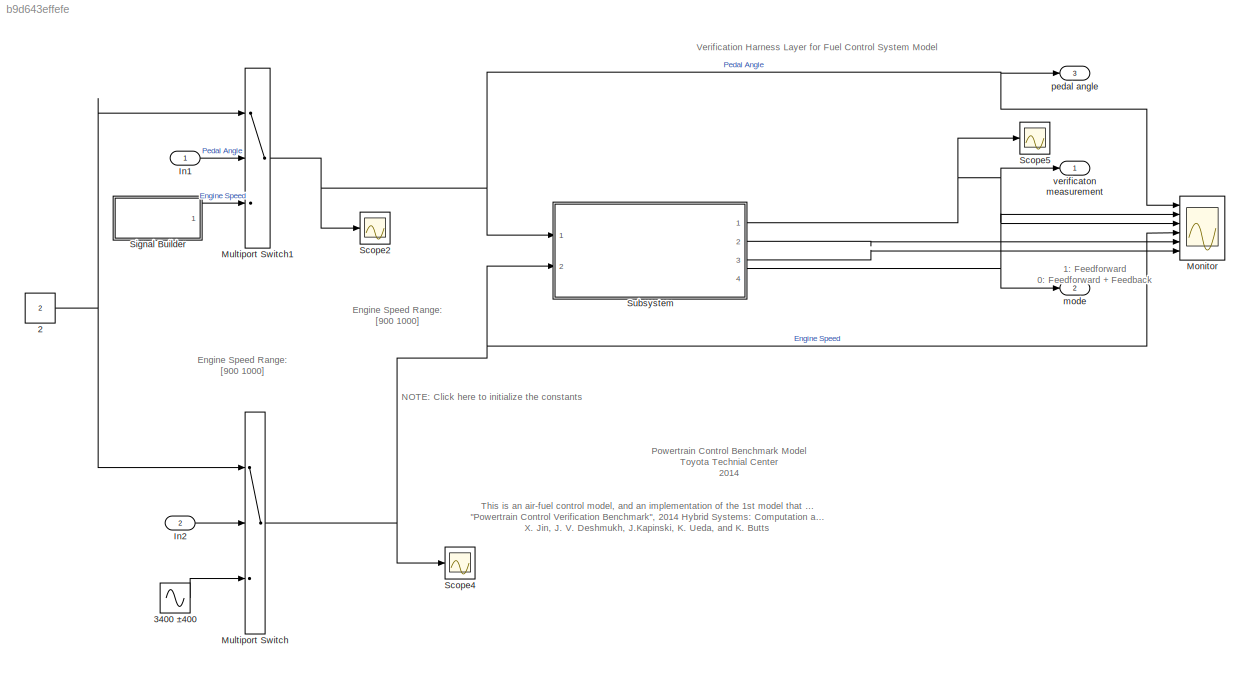
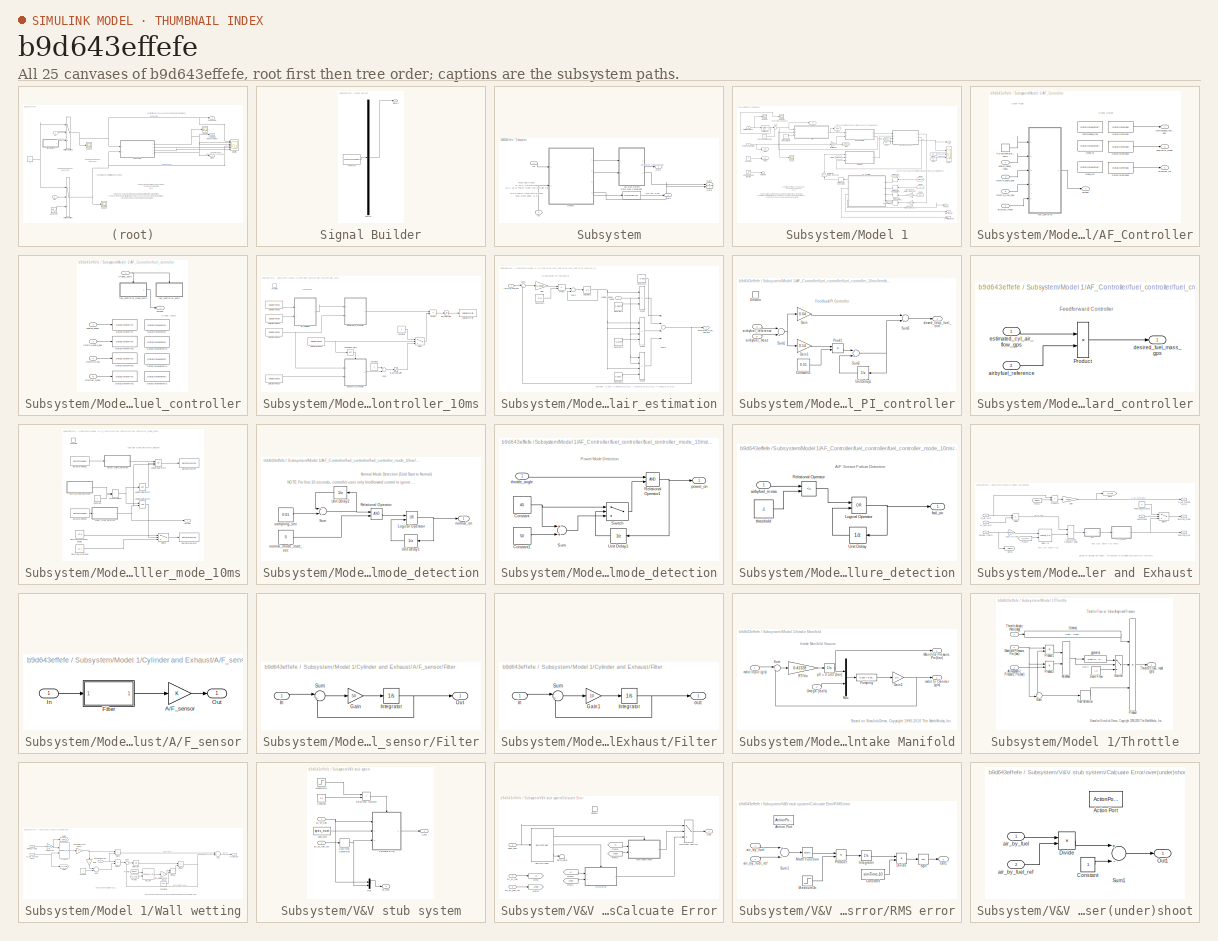
[diagram: thumbnail index - all 25 canvases of the model, root first then tree order]
MODEL slx_b9d643effefe
KIND model
CONFIG AbsTol = 1e-6
CONFIG FixedStep = .00005
CONFIG MaxStep = auto
CONFIG MinStep = auto
CONFIG RelTol = 1e-6
CONFIG SampleTimeConstraint = Unconstrained
CONFIG Solver = ode15s
CONFIG SolverMode = SingleTasking
CONFIG SolverName = ode15s
CONFIG StartTime = 0.0
CONFIG StopTime = 85
BLOCK [Constant]  2
  Value = 2
BLOCK [Sin] 3400 ±400
  Amplitude = 400
  Bias = 3400
  Ports = [0, 1]
  SampleTime = 0
BLOCK [Inport] In1
  IconDisplay = Port number
BLOCK [Inport] In2
  IconDisplay = Port number
  Port = 2
BLOCK [Scope] Monitor 
  NumInputPorts = 6
  Ports = [6]
  ScopeSpecificationString = C++SS(StrPVP('Location','[5, 48, 1925, 1039]'),StrPVP('Open','off'),StrPVP('ZoomMode','xonly'),MxPVP('AxesTitles',24,'struct(''axes1'',''%<SignalLabel>'',''axes2'',''%<SignalLabel>'',''axes3'',''%<SignalLabel>'',''axes4'',''%<SignalLabel>'',''axes5'',''%<SignalLabel>'',''axes6'',''%<SignalLabel>'')'),MxPVP('ScopeGraphics',28,'struct(''FigureColor'',''[0.501960784313725 0.501960784313725 0.50196078...<+553ch>
BLOCK [MultiPortSwitch] Multiport Switch
  InputSameDT = off
  Inputs = 2
  Ports = [3, 1]
  SaturateOnIntegerOverflow = off
BLOCK [MultiPortSwitch] Multiport Switch1
  InputSameDT = off
  Inputs = 2
  Ports = [3, 1]
  SaturateOnIntegerOverflow = off
BLOCK [Scope] Scope2
  Ports = [1]
  ScopeSpecificationString = C++SS(StrPVP('Location','[1158, 412, 1482, 678]'),StrPVP('Open','off'),MxPVP('AxesTitles',24,'struct(''axes1'',''%<SignalLabel>'')'),MxPVP('ScopeGraphics',28,'struct(''FigureColor'',''[0.5 0.5 0.5]'',''AxesColor'',''[0 0 0]'',''AxesTickColor'',''[1 1 1]'',''LineColors'',''[1 1 0;1 0 1;0 1 1;1 0 0;0 1 0;0 0 1]'',''LineStyles'',''-|-|-|-|-|-'',''LineWidths'',''[0.5 0.5 0.5 0.5 0.5 0.5]'',''MarkerSty...<+274ch>  <repeated x3 — deduplicated; at blocks: Scope2, Scope4, Scope5>
BLOCK [Scope] Scope4
  Ports = [1]
BLOCK [Scope] Scope5
  Ports = [1]
BLOCK [SubSystem] Signal Builder
  ClipboardFcn = sigbuilder_block('clipboard');
  CloseFcn = sigbuilder_block('close');
  ContinueFcn = sigbuilder_block('continue');
  CopyFcn = sigbuilder_block('copy');
  DeleteFcn = sigbuilder_block('delete');
  LoadFcn = sigbuilder_block('load');
  MaskHideContents = on
  ModelCloseFcn = sigbuilder_block('modelClose');
  NameChangeFcn = sigbuilder_block('namechange');
  OpenFcn = sigbuilder_block('open',[-1191.5 -254 1269 710 ]);
  PauseFcn = sigbuilder_block('pause');
  Ports = [0, 1]
  PreSaveFcn = sigbuilder_block('preSave');
  RequestExecContextInheritance = off
  StartFcn = sigbuilder_block('start');
  StopFcn = sigbuilder_block('stop');
  Tag = STV Subsys
  Variant = off
BLOCK [Demux] Signal Builder/Demux
  Outputs = 1
  Ports = [1, 1]
  Tag = STV Demux
BLOCK [FromWorkspace] Signal Builder/FromWs
  SampleTime = 0
  Tag = STV FromWs
  VariableName = tuvar
  ZeroCross = on
BLOCK [Outport] Signal Builder/Signal 1
  IconDisplay = Port number
  Tag = STV Outport
BLOCK [SubSystem] Subsystem
  Ports = [2, 4]
  RequestExecContextInheritance = off
  Variant = off
BLOCK [DataTypeConversion] Subsystem/Data Type Conversion
  RndMeth = Floor
  SaturateOnIntegerOverflow = off
BLOCK [Inport] Subsystem/In1
  IconDisplay = Port number
BLOCK [Inport] Subsystem/In2
  IconDisplay = Port number
  Port = 2
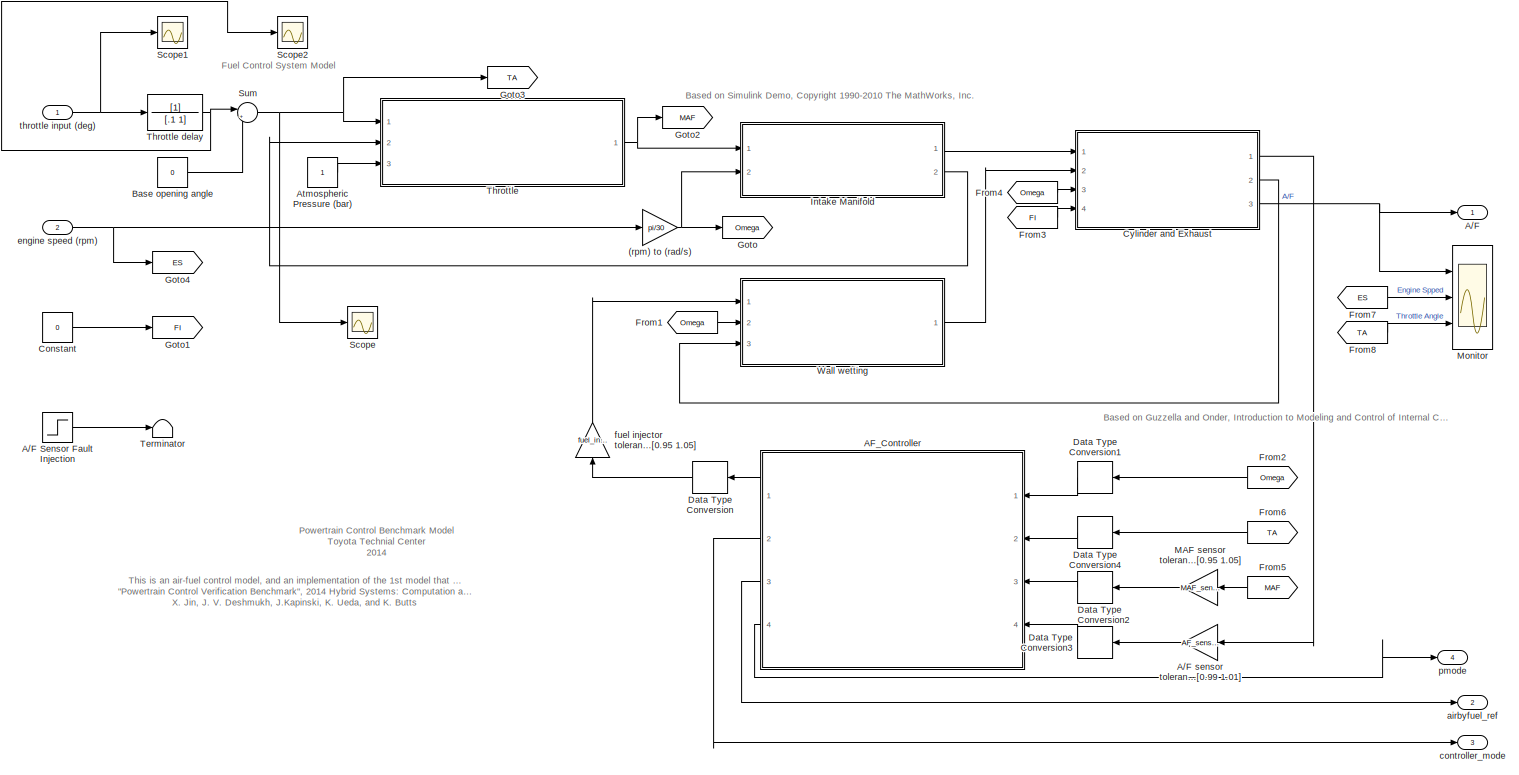
[diagram: Subsystem/Model 1 - part 1/1, most of the canvas]
BLOCK [SubSystem] Subsystem/Model 1
  Ports = [2, 4]
  Priority = 1
  RequestExecContextInheritance = off
  TreatAsAtomicUnit = on
  Variant = off
BLOCK [Gain] Subsystem/Model 1/(rpm) to (rad//s)
  Gain = pi/30
  OutDataTypeStr = Inherit: Inherit via internal rule
  ParamDataTypeStr = Inherit: Inherit via internal rule
  SaturateOnIntegerOverflow = off
BLOCK [Outport] Subsystem/Model 1/A//F
  IconDisplay = Port number
BLOCK [Step] Subsystem/Model 1/A//F Sensor Fault Injection
  AttributesFormatString = 1: Failure\n0: Normal
  SampleTime = 0
  Time = fault_time
BLOCK [Gain] Subsystem/Model 1/A//F sensor tolerance [0.99 1.01]
  Gain = AF_sensor_tol
  OutDataTypeStr = Inherit: Inherit via internal rule
  ParamDataTypeStr = Inherit: Inherit via internal rule
  SaturateOnIntegerOverflow = off
BLOCK [SubSystem] Subsystem/Model 1/AF_Controller
  Ports = [4, 4]
  RequestExecContextInheritance = off
  TreatAsAtomicUnit = on
  Variant = off
BLOCK [DataStoreRead] Subsystem/Model 1/AF_Controller/DataStoreRead
  AttributesFormatString = Priority = %<Priority>
  DataStoreName = commanded_fuel
  Ports = [0, 1]
  Priority = 2
BLOCK [DataStoreRead] Subsystem/Model 1/AF_Controller/DataStoreRead1
  AttributesFormatString = Priority = %<Priority>
  DataStoreName = controller_mode
  Ports = [0, 1]
  Priority = 2
BLOCK [DataStoreRead] Subsystem/Model 1/AF_Controller/DataStoreRead2
  AttributesFormatString = Priority = %<Priority>
  DataStoreName = airbyfuel_ref
  Ports = [0, 1]
  Priority = 2
BLOCK [DiscretePulseGenerator] Subsystem/Model 1/AF_Controller/PulseGenerator_10ms
  Period = 0.01
  PhaseDelay = 0.01
  Ports = [0, 1]
  PulseType = Time based
  PulseWidth = 50
BLOCK [Inport] Subsystem/Model 1/AF_Controller/airbyfuel_meas
  IconDisplay = Port number
  Port = 4
  SamplingMode = Sample based
  SignalType = real
BLOCK [Outport] Subsystem/Model 1/AF_Controller/airbyfuel_ref
  IconDisplay = Port number
  Port = 3
  SamplingMode = Sample based
  SignalType = real
BLOCK [DataStoreMemory] Subsystem/Model 1/AF_Controller/commanded_fuel
  AttributesFormatString = commanded_fuel
  DataStoreName = commanded_fuel
  InitialValue = 0.1726
  OutDataTypeStr = single
  SignalType = real
BLOCK [Outport] Subsystem/Model 1/AF_Controller/commanded_fuel_gps
  IconDisplay = Port number
  SamplingMode = Sample based
  SignalType = real
BLOCK [Outport] Subsystem/Model 1/AF_Controller/controller_mode
  IconDisplay = Port number
  Port = 2
  SamplingMode = Sample based
  SignalType = real
BLOCK [Inport] Subsystem/Model 1/AF_Controller/engine_speed_radps
  IconDisplay = Port number
  SamplingMode = Sample based
  SignalType = real
BLOCK [SubSystem] Subsystem/Model 1/AF_Controller/fuel_controller
  AttributesFormatString = Priority = %<Priority>
  Ports = [5, 1]
  Priority = 1
  RequestExecContextInheritance = off
  TreatAsAtomicUnit = on
  Variant = off
BLOCK [DataStoreMemory] Subsystem/Model 1/AF_Controller/fuel_controller/DataStoreMemory
  AttributesFormatString = engine speed
  DataStoreName = engine_speed
  OutDataTypeStr = single
  SignalType = real
BLOCK [DataStoreMemory] Subsystem/Model 1/AF_Controller/fuel_controller/DataStoreMemory1
  AttributesFormatString = throttle flow
  DataStoreName = throttle_flow
  OutDataTypeStr = single
  SignalType = real
BLOCK [DataStoreMemory] Subsystem/Model 1/AF_Controller/fuel_controller/DataStoreMemory2
  AttributesFormatString = lambda_meas
  DataStoreName = airbyfuel_meas
  OutDataTypeStr = single
  SignalType = real
BLOCK [DataStoreMemory] Subsystem/Model 1/AF_Controller/fuel_controller/DataStoreMemory3
  AttributesFormatString = throttle flow
  DataStoreName = throttle_angle
  OutDataTypeStr = single
  SignalType = real
BLOCK [DataStoreWrite] Subsystem/Model 1/AF_Controller/fuel_controller/DataStoreWrite
  AttributesFormatString = Priority = %<Priority>
  DataStoreName = engine_speed
  Ports = [1]
  Priority = 1
BLOCK [DataStoreWrite] Subsystem/Model 1/AF_Controller/fuel_controller/DataStoreWrite1
  AttributesFormatString = Priority = %<Priority>
  DataStoreName = throttle_flow
  Ports = [1]
  Priority = 1
BLOCK [DataStoreWrite] Subsystem/Model 1/AF_Controller/fuel_controller/DataStoreWrite2
  AttributesFormatString = Priority = %<Priority>
  DataStoreName = airbyfuel_meas
  Ports = [1]
  Priority = 1
BLOCK [DataStoreWrite] Subsystem/Model 1/AF_Controller/fuel_controller/DataStoreWrite3
  AttributesFormatString = Priority = %<Priority>
  DataStoreName = throttle_angle
  Ports = [1]
  Priority = 1
BLOCK [Inport] Subsystem/Model 1/AF_Controller/fuel_controller/airbyfuel_meas
  IconDisplay = Port number
  Port = 5
  SamplingMode = Sample based
  SignalType = real
BLOCK [Inport] Subsystem/Model 1/AF_Controller/fuel_controller/engine_speed
  IconDisplay = Port number
  Port = 2
  SamplingMode = Sample based
  SignalType = real
BLOCK [SubSystem] Subsystem/Model 1/AF_Controller/fuel_controller/fuel_controller_10ms
  AttributesFormatString = Priority = %<Priority>
  Ports = [0, 0, 0, 1]
  Priority = 30
  RequestExecContextInheritance = off
  TreatAsAtomicUnit = on
  Variant = off
BLOCK [Constant] Subsystem/Model 1/AF_Controller/fuel_controller/fuel_controller_10ms/Constant2
  OutDataTypeStr = single
BLOCK [Constant] Subsystem/Model 1/AF_Controller/fuel_controller/fuel_controller_10ms/Constant3
  OutDataTypeStr = single
BLOCK [DataStoreRead] Subsystem/Model 1/AF_Controller/fuel_controller/fuel_controller_10ms/DataStoreRead
  DataStoreName = throttle_flow
  Ports = [0, 1]
BLOCK [DataStoreRead] Subsystem/Model 1/AF_Controller/fuel_controller/fuel_controller_10ms/DataStoreRead1
  DataStoreName = engine_speed
  Ports = [0, 1]
BLOCK [DataStoreRead] Subsystem/Model 1/AF_Controller/fuel_controller/fuel_controller_10ms/DataStoreRead2
  DataStoreName = airbyfuel_meas
  Ports = [0, 1]
BLOCK [DataStoreRead] Subsystem/Model 1/AF_Controller/fuel_controller/fuel_controller_10ms/DataStoreRead3
  AttributesFormatString = 1: Feedforward\n0: Feedforward + Feedback
  DataStoreName = controller_mode
  Ports = [0, 1]
BLOCK [DataStoreRead] Subsystem/Model 1/AF_Controller/fuel_controller/fuel_controller_10ms/DataStoreRead4
  DataStoreName = airbyfuel_ref
  Ports = [0, 1]
BLOCK [DataStoreWrite] Subsystem/Model 1/AF_Controller/fuel_controller/fuel_controller_10ms/DataStoreWrite
  DataStoreName = commanded_fuel
  Ports = [1]
BLOCK [TriggerPort] Subsystem/Model 1/AF_Controller/fuel_controller/fuel_controller_10ms/Function
  Ports = []
  StatesWhenEnabling = held
BLOCK [Logic] Subsystem/Model 1/AF_Controller/fuel_controller/fuel_controller_10ms/Logical Operator2
  AllPortsSameDT = off
  Operator = NOT
  OutDataTypeStr = boolean
  Ports = [1, 1]
BLOCK [Product] Subsystem/Model 1/AF_Controller/fuel_controller/fuel_controller_10ms/Prod1
  InputSameDT = off
  OutDataTypeStr = Inherit: Inherit via back propagation
  Ports = [2, 1]
  RndMeth = Simplest
  SaturateOnIntegerOverflow = off
BLOCK [Sum] Subsystem/Model 1/AF_Controller/fuel_controller/fuel_controller_10ms/Sum1
  OutDataTypeStr = Inherit: Inherit via back propagation
  Ports = [2, 1]
  RndMeth = Simplest
  SaturateOnIntegerOverflow = off
BLOCK [Switch] Subsystem/Model 1/AF_Controller/fuel_controller/fuel_controller_10ms/Switch
  Criteria = u2 ~= 0
  InputSameDT = off
  SaturateOnIntegerOverflow = off
  Threshold = 0.5
BLOCK [SubSystem] Subsystem/Model 1/AF_Controller/fuel_controller/fuel_controller_10ms/air_estimation
  Ports = [2, 1]
  RequestExecContextInheritance = off
  TreatAsAtomicUnit = on
  Variant = off
BLOCK [Constant] Subsystem/Model 1/AF_Controller/fuel_controller/fuel_controller_10ms/air_estimation/Constant1
  AttributesFormatString = Sample Time (s)
  OutDataTypeStr = single
  SampleTime = -1
  UserDataPersistent = on
  Value = 0.01
BLOCK [Constant] Subsystem/Model 1/AF_Controller/fuel_controller/fuel_controller_10ms/air_estimation/Constant2
  OutDataTypeStr = single
  SampleTime = -1
  UserDataPersistent = on
  Value = -0.366
BLOCK [Constant] Subsystem/Model 1/AF_Controller/fuel_controller/fuel_controller_10ms/air_estimation/Constant3
  OutDataTypeStr = single
  SampleTime = -1
  UserDataPersistent = on
  Value = 0.08979
BLOCK [Constant] Subsystem/Model 1/AF_Controller/fuel_controller/fuel_controller_10ms/air_estimation/Constant4
  OutDataTypeStr = single
  SampleTime = -1
  UserDataPersistent = on
  Value = -0.0337
BLOCK [Constant] Subsystem/Model 1/AF_Controller/fuel_controller/fuel_controller_10ms/air_estimation/Constant5
  OutDataTypeStr = single
  SampleTime = -1
  UserDataPersistent = on
  Value = 0.0001
BLOCK [Gain] Subsystem/Model 1/AF_Controller/fuel_controller/fuel_controller_10ms/air_estimation/Gain
  AttributesFormatString = RT/Vm
  Gain = 0.41328
  OutDataTypeStr = Inherit: Inherit via back propagation
  ParamDataTypeStr = single
  RndMeth = Simplest
  UserDataPersistent = on
BLOCK [Product] Subsystem/Model 1/AF_Controller/fuel_controller/fuel_controller_10ms/air_estimation/Prod1
  InputSameDT = off
  OutDataTypeStr = Inherit: Inherit via back propagation
  Ports = [2, 1]
  RndMeth = Simplest
  SaturateOnIntegerOverflow = off
BLOCK [Product] Subsystem/Model 1/AF_Controller/fuel_controller/fuel_controller_10ms/air_estimation/Prod2
  InputSameDT = off
  Inputs = 3
  OutDataTypeStr = Inherit: Inherit via back propagation
  Ports = [3, 1]
  RndMeth = Simplest
  SaturateOnIntegerOverflow = off
BLOCK [Product] Subsystem/Model 1/AF_Controller/fuel_controller/fuel_controller_10ms/air_estimation/Prod3
  InputSameDT = off
  Inputs = 4
  OutDataTypeStr = Inherit: Inherit via back propagation
  Ports = [4, 1]
  RndMeth = Simplest
  SaturateOnIntegerOverflow = off
BLOCK [Product] Subsystem/Model 1/AF_Controller/fuel_controller/fuel_controller_10ms/air_estimation/Prod4
  InputSameDT = off
  Inputs = 4
  OutDataTypeStr = Inherit: Inherit via back propagation
  Ports = [4, 1]
  RndMeth = Simplest
  SaturateOnIntegerOverflow = off
BLOCK [Sum] Subsystem/Model 1/AF_Controller/fuel_controller/fuel_controller_10ms/air_estimation/Sum1
  IconShape = round
  Inputs = |+-
  OutDataTypeStr = Inherit: Inherit via back propagation
  Ports = [2, 1]
  RndMeth = Simplest
  SaturateOnIntegerOverflow = off
BLOCK [Sum] Subsystem/Model 1/AF_Controller/fuel_controller/fuel_controller_10ms/air_estimation/Sum2
  OutDataTypeStr = Inherit: Inherit via back propagation
  Ports = [2, 1]
  RndMeth = Simplest
  SaturateOnIntegerOverflow = off
BLOCK [Sum] Subsystem/Model 1/AF_Controller/fuel_controller/fuel_controller_10ms/air_estimation/Sum3
  Inputs = ++++
  OutDataTypeStr = Inherit: Inherit via back propagation
  Ports = [4, 1]
  RndMeth = Simplest
  SaturateOnIntegerOverflow = off
BLOCK [UnitDelay] Subsystem/Model 1/AF_Controller/fuel_controller/fuel_controller_10ms/air_estimation/UnitDelay1
  AttributesFormatString = p0 = %<InitialCondition> (bar)
  InitialCondition = 0.982
  SampleTime = -1
  UserDataPersistent = on
BLOCK [Inport] Subsystem/Model 1/AF_Controller/fuel_controller/fuel_controller_10ms/air_estimation/engine_speed_radps
  IconDisplay = Port number
  Port = 2
  SamplingMode = Sample based
  SignalType = real
BLOCK [Outport] Subsystem/Model 1/AF_Controller/fuel_controller/fuel_controller_10ms/air_estimation/estimated_cyl_air_flow_gps
  IconDisplay = Port number
  SamplingMode = Sample based
  SignalType = real
BLOCK [Inport] Subsystem/Model 1/AF_Controller/fuel_controller/fuel_controller_10ms/air_estimation/throttle_flow_gps
  IconDisplay = Port number
  SamplingMode = Sample based
  SignalType = real
BLOCK [Saturate] Subsystem/Model 1/AF_Controller/fuel_controller/fuel_controller_10ms/fb_fuel_saturation
  AttributesFormatString = y >= 0
  InputPortMap = u0
  LowerLimit = 0
  Ports = [1, 1]
  RndMeth = Round
  UpperLimit = inf
BLOCK [SubSystem] Subsystem/Model 1/AF_Controller/fuel_controller/fuel_controller_10ms/feedback_PI_controller
  Ports = [2, 1, 1]
  RequestExecContextInheritance = off
  TreatAsAtomicUnit = on
  Variant = off
BLOCK [Constant] Subsystem/Model 1/AF_Controller/fuel_controller/fuel_controller_10ms/feedback_PI_controller/Constant1
  AttributesFormatString = Sample Time [s]
  OutDataTypeStr = single
  SampleTime = -1
  UserDataPersistent = on
  Value = 0.01
BLOCK [EnablePort] Subsystem/Model 1/AF_Controller/fuel_controller/fuel_controller_10ms/feedback_PI_controller/Enable
  Ports = []
BLOCK [Gain] Subsystem/Model 1/AF_Controller/fuel_controller/fuel_controller_10ms/feedback_PI_controller/Gain
  AttributesFormatString = Proportional Gain
  Gain = 0.04
  OutDataTypeStr = Inherit: Inherit via back propagation
  ParamDataTypeStr = single
  RndMeth = Simplest
  UserDataPersistent = on
BLOCK [Gain] Subsystem/Model 1/AF_Controller/fuel_controller/fuel_controller_10ms/feedback_PI_controller/Gain1
  AttributesFormatString = Integral Gain
  Gain = 0.14
  OutDataTypeStr = Inherit: Inherit via back propagation
  ParamDataTypeStr = single
  RndMeth = Simplest
  UserDataPersistent = on
BLOCK [Product] Subsystem/Model 1/AF_Controller/fuel_controller/fuel_controller_10ms/feedback_PI_controller/Prod1
  InputSameDT = off
  OutDataTypeStr = Inherit: Inherit via back propagation
  Ports = [2, 1]
  RndMeth = Simplest
  SaturateOnIntegerOverflow = off
BLOCK [Sum] Subsystem/Model 1/AF_Controller/fuel_controller/fuel_controller_10ms/feedback_PI_controller/Sum1
  Inputs = -+
  OutDataTypeStr = Inherit: Inherit via back propagation
  Ports = [2, 1]
  RndMeth = Simplest
  SaturateOnIntegerOverflow = off
BLOCK [Sum] Subsystem/Model 1/AF_Controller/fuel_controller/fuel_controller_10ms/feedback_PI_controller/Sum2
  OutDataTypeStr = Inherit: Inherit via back propagation
  Ports = [2, 1]
  RndMeth = Simplest
  SaturateOnIntegerOverflow = off
BLOCK [Sum] Subsystem/Model 1/AF_Controller/fuel_controller/fuel_controller_10ms/feedback_PI_controller/Sum3
  OutDataTypeStr = Inherit: Inherit via back propagation
  Ports = [2, 1]
  RndMeth = Simplest
  SaturateOnIntegerOverflow = off
BLOCK [UnitDelay] Subsystem/Model 1/AF_Controller/fuel_controller/fuel_controller_10ms/feedback_PI_controller/UnitDelay1
  AttributesFormatString = Initial Value = 0
  SampleTime = -1
  UserDataPersistent = on
BLOCK [Inport] Subsystem/Model 1/AF_Controller/fuel_controller/fuel_controller_10ms/feedback_PI_controller/airbyfuel_meas
  IconDisplay = Port number
  Port = 2
  SamplingMode = Sample based
  SignalType = real
BLOCK [Inport] Subsystem/Model 1/AF_Controller/fuel_controller/fuel_controller_10ms/feedback_PI_controller/airbyfuel_reference
  IconDisplay = Port number
  SamplingMode = Sample based
  SignalType = real
BLOCK [Outport] Subsystem/Model 1/AF_Controller/fuel_controller/fuel_controller_10ms/feedback_PI_controller/closed_loop_fuel_trim
  IconDisplay = Port number
  SamplingMode = Sample based
  SignalType = real
BLOCK [SubSystem] Subsystem/Model 1/AF_Controller/fuel_controller/fuel_controller_10ms/feedforward_controller
  Ports = [2, 1]
  RequestExecContextInheritance = off
  TreatAsAtomicUnit = on
  Variant = off
BLOCK [Product] Subsystem/Model 1/AF_Controller/fuel_controller/fuel_controller_10ms/feedforward_controller/Product
  InputSameDT = off
  Inputs = */
  Ports = [2, 1]
  RndMeth = Simplest
BLOCK [Inport] Subsystem/Model 1/AF_Controller/fuel_controller/fuel_controller_10ms/feedforward_controller/airbyfuel_reference
  IconDisplay = Port number
  Port = 2
  SamplingMode = Sample based
  SignalType = real
BLOCK [Outport] Subsystem/Model 1/AF_Controller/fuel_controller/fuel_controller_10ms/feedforward_controller/desired_fuel_mass_gps
  IconDisplay = Port number
  SamplingMode = Sample based
  SignalType = real
BLOCK [Inport] Subsystem/Model 1/AF_Controller/fuel_controller/fuel_controller_10ms/feedforward_controller/estimated_cyl_air_flow_gps
  IconDisplay = Port number
  SamplingMode = Sample based
  SignalType = real
BLOCK [Saturate] Subsystem/Model 1/AF_Controller/fuel_controller/fuel_controller_10ms/fuel_saturation
  AttributesFormatString = 0.13 <=\ncommanded_fuel\n<= 1.66
  InputPortMap = u0
  LowerLimit = 0.13
  Ports = [1, 1]
  RndMeth = Round
  UpperLimit = 1.66
BLOCK [SubSystem] Subsystem/Model 1/AF_Controller/fuel_controller/fuel_controller_mode_10ms
  AttributesFormatString = Priority = %<Priority>
  Ports = [0, 1, 0, 1]
  Priority = 20
  RequestExecContextInheritance = off
  TreatAsAtomicUnit = on
  Variant = off
BLOCK [Constant] Subsystem/Model 1/AF_Controller/fuel_controller/fuel_controller_mode_10ms/Constant
  SampleTime = -1
BLOCK [DataStoreRead] Subsystem/Model 1/AF_Controller/fuel_controller/fuel_controller_mode_10ms/DataStoreRead2
  DataStoreName = airbyfuel_meas
  Ports = [0, 1]
BLOCK [DataStoreRead] Subsystem/Model 1/AF_Controller/fuel_controller/fuel_controller_mode_10ms/DataStoreRead4
  DataStoreName = throttle_angle
  Ports = [0, 1]
BLOCK [DataStoreWrite] Subsystem/Model 1/AF_Controller/fuel_controller/fuel_controller_mode_10ms/DataStoreWrite
  AttributesFormatString = 1: Feedforward\n0: Feedforward + Feedback
  DataStoreName = controller_mode
  Ports = [1]
BLOCK [DataStoreWrite] Subsystem/Model 1/AF_Controller/fuel_controller/fuel_controller_mode_10ms/DataStoreWrite1
  DataStoreName = airbyfuel_ref
  Ports = [1]
BLOCK [TriggerPort] Subsystem/Model 1/AF_Controller/fuel_controller/fuel_controller_mode_10ms/Function
  Ports = []
  StatesWhenEnabling = held
BLOCK [Logic] Subsystem/Model 1/AF_Controller/fuel_controller/fuel_controller_mode_10ms/Logical Operator1
  AllPortsSameDT = off
  Inputs = 3
  Operator = OR
  OutDataTypeStr = boolean
  Ports = [3, 1]
BLOCK [Logic] Subsystem/Model 1/AF_Controller/fuel_controller/fuel_controller_mode_10ms/Logical Operator2
  AllPortsSameDT = off
  Operator = NOT
  OutDataTypeStr = boolean
  Ports = [1, 1]
BLOCK [Logic] Subsystem/Model 1/AF_Controller/fuel_controller/fuel_controller_mode_10ms/Logical Operator3
  AllPortsSameDT = off
  OutDataTypeStr = boolean
  Ports = [2, 1]
BLOCK [ManualSwitch] Subsystem/Model 1/AF_Controller/fuel_controller/fuel_controller_mode_10ms/Manual Switch
  CurrentSetting = 0
BLOCK [Switch] Subsystem/Model 1/AF_Controller/fuel_controller/fuel_controller_mode_10ms/Switch
  Criteria = u2 ~= 0
  InputSameDT = off
  SaturateOnIntegerOverflow = off
BLOCK [Constant] Subsystem/Model 1/AF_Controller/fuel_controller/fuel_controller_mode_10ms/airbyfuel_reference
  OutDataTypeStr = single
  SampleTime = -1
  UserDataPersistent = on
  Value = 14.7
BLOCK [Constant] Subsystem/Model 1/AF_Controller/fuel_controller/fuel_controller_mode_10ms/airbyfuel_reference_power
  OutDataTypeStr = single
  SampleTime = -1
  UserDataPersistent = on
  Value = 12.5
BLOCK [SubSystem] Subsystem/Model 1/AF_Controller/fuel_controller/fuel_controller_mode_10ms/normal_mode_detection
  AttributesFormatString = 0: Feedforward\n1: Feedforward + Feedback
  Ports = [0, 1]
  RequestExecContextInheritance = off
  TreatAsAtomicUnit = on
  Variant = off
BLOCK [Logic] Subsystem/Model 1/AF_Controller/fuel_controller/fuel_controller_mode_10ms/normal_mode_detection/Logical Operator
  Operator = OR
  OutDataTypeStr = boolean
  Ports = [2, 1]
BLOCK [RelationalOperator] Subsystem/Model 1/AF_Controller/fuel_controller/fuel_controller_mode_10ms/normal_mode_detection/Relational Operator
  InputSameDT = off
  OutDataTypeStr = boolean
  Ports = [2, 1]
BLOCK [Sum] Subsystem/Model 1/AF_Controller/fuel_controller/fuel_controller_mode_10ms/normal_mode_detection/Sum
  InputSameDT = off
  OutDataTypeStr = Inherit: Inherit via internal rule
  Ports = [2, 1]
  SaturateOnIntegerOverflow = off
BLOCK [UnitDelay] Subsystem/Model 1/AF_Controller/fuel_controller/fuel_controller_mode_10ms/normal_mode_detection/Unit Delay1
  AttributesFormatString = Initial Value = 0
  InputProcessing = Elements as channels (sample based)
  SampleTime = -1
BLOCK [UnitDelay] Subsystem/Model 1/AF_Controller/fuel_controller/fuel_controller_mode_10ms/normal_mode_detection/Unit Delay2
  AttributesFormatString = Initial Value = 0
  InputProcessing = Elements as channels (sample based)
  SampleTime = -1
BLOCK [Constant] Subsystem/Model 1/AF_Controller/fuel_controller/fuel_controller_mode_10ms/normal_mode_detection/normal_mode_start_sec
  AttributesFormatString = Normal Mode Start Time (s)
  OutDataTypeStr = single
  SampleTime = -1
  UserDataPersistent = on
  Value = 0
BLOCK [Outport] Subsystem/Model 1/AF_Controller/fuel_controller/fuel_controller_mode_10ms/normal_mode_detection/normal_on
  IconDisplay = Port number
BLOCK [Constant] Subsystem/Model 1/AF_Controller/fuel_controller/fuel_controller_mode_10ms/normal_mode_detection/sampling_sec
  AttributesFormatString = Sample Time (s)
  OutDataTypeStr = single
  SampleTime = -1
  UserDataPersistent = on
  Value = 0.01
BLOCK [Outport] Subsystem/Model 1/AF_Controller/fuel_controller/fuel_controller_mode_10ms/pmode
  IconDisplay = Port number
BLOCK [SubSystem] Subsystem/Model 1/AF_Controller/fuel_controller/fuel_controller_mode_10ms/power_mode_detection
  AttributesFormatString = 1: Feedforward\n0: Feedforward + Feedback
  Ports = [1, 1]
  RequestExecContextInheritance = off
  TreatAsAtomicUnit = on
  Variant = off
BLOCK [Constant] Subsystem/Model 1/AF_Controller/fuel_controller/fuel_controller_mode_10ms/power_mode_detection/Constant
  AttributesFormatString = Base
  OutDataTypeStr = single
  Value = 40
BLOCK [Constant] Subsystem/Model 1/AF_Controller/fuel_controller/fuel_controller_mode_10ms/power_mode_detection/Constant1
  AttributesFormatString = Hysteresis
  OutDataTypeStr = single
  Value = 50
BLOCK [RelationalOperator] Subsystem/Model 1/AF_Controller/fuel_controller/fuel_controller_mode_10ms/power_mode_detection/Relational Operator1
  InputSameDT = off
  OutDataTypeStr = boolean
  Ports = [2, 1]
BLOCK [Sum] Subsystem/Model 1/AF_Controller/fuel_controller/fuel_controller_mode_10ms/power_mode_detection/Sum
  InputSameDT = off
  OutDataTypeStr = Inherit: Inherit via internal rule
  Ports = [2, 1]
  SaturateOnIntegerOverflow = off
BLOCK [Switch] Subsystem/Model 1/AF_Controller/fuel_controller/fuel_controller_mode_10ms/power_mode_detection/Switch
  Criteria = u2 ~= 0
  InputSameDT = off
  SaturateOnIntegerOverflow = off
BLOCK [UnitDelay] Subsystem/Model 1/AF_Controller/fuel_controller/fuel_controller_mode_10ms/power_mode_detection/Unit Delay1
  AttributesFormatString = Initial Value = 0
  InputProcessing = Elements as channels (sample based)
  SampleTime = -1
BLOCK [Outport] Subsystem/Model 1/AF_Controller/fuel_controller/fuel_controller_mode_10ms/power_mode_detection/power_on
  IconDisplay = Port number
BLOCK [Inport] Subsystem/Model 1/AF_Controller/fuel_controller/fuel_controller_mode_10ms/power_mode_detection/throttle_angle
  IconDisplay = Port number
BLOCK [SubSystem] Subsystem/Model 1/AF_Controller/fuel_controller/fuel_controller_mode_10ms/sensor_failure_detection
  AttributesFormatString = 1: Feedforward\n0: Feedforward + Feedback
  Ports = [1, 1]
  RequestExecContextInheritance = off
  TreatAsAtomicUnit = on
  Variant = off
BLOCK [Logic] Subsystem/Model 1/AF_Controller/fuel_controller/fuel_controller_mode_10ms/sensor_failure_detection/Logical Operator
  Operator = OR
  OutDataTypeStr = boolean
  Ports = [2, 1]
BLOCK [RelationalOperator] Subsystem/Model 1/AF_Controller/fuel_controller/fuel_controller_mode_10ms/sensor_failure_detection/Relational Operator
  InputSameDT = off
  Operator = <=
  OutDataTypeStr = boolean
  Ports = [2, 1]
BLOCK [UnitDelay] Subsystem/Model 1/AF_Controller/fuel_controller/fuel_controller_mode_10ms/sensor_failure_detection/Unit Delay
  AttributesFormatString = Initial Value = 0
  InputProcessing = Elements as channels (sample based)
  SampleTime = -1
BLOCK [Inport] Subsystem/Model 1/AF_Controller/fuel_controller/fuel_controller_mode_10ms/sensor_failure_detection/airbyfuel_meas
  IconDisplay = Port number
BLOCK [Outport] Subsystem/Model 1/AF_Controller/fuel_controller/fuel_controller_mode_10ms/sensor_failure_detection/fail_on
  IconDisplay = Port number
BLOCK [Constant] Subsystem/Model 1/AF_Controller/fuel_controller/fuel_controller_mode_10ms/sensor_failure_detection/threshold
  OutDataTypeStr = single
  Value = -1
BLOCK [Outport] Subsystem/Model 1/AF_Controller/fuel_controller/pmode
  IconDisplay = Port number
BLOCK [Inport] Subsystem/Model 1/AF_Controller/fuel_controller/throttle_angle_deg
  IconDisplay = Port number
  Port = 3
  SamplingMode = Sample based
  SignalType = real
BLOCK [Inport] Subsystem/Model 1/AF_Controller/fuel_controller/throttle_flow
  IconDisplay = Port number
  Port = 4
  SamplingMode = Sample based
  SignalType = real
BLOCK [Inport] Subsystem/Model 1/AF_Controller/fuel_controller/trigger_10ms
  IconDisplay = Port number
  SamplingMode = Sample based
  SignalType = real
BLOCK [DataStoreMemory] Subsystem/Model 1/AF_Controller/mode_fb
  AttributesFormatString = controller_mode
  DataStoreName = controller_mode
  OutDataTypeStr = boolean
  SignalType = real
BLOCK [DataStoreMemory] Subsystem/Model 1/AF_Controller/mode_fb1
  AttributesFormatString = airbyfuel_reference
  DataStoreName = airbyfuel_ref
  OutDataTypeStr = single
  SignalType = real
BLOCK [Outport] Subsystem/Model 1/AF_Controller/pmode
  IconDisplay = Port number
  Port = 4
BLOCK [Inport] Subsystem/Model 1/AF_Controller/throttle_angle_deg
  IconDisplay = Port number
  Port = 2
  SamplingMode = Sample based
  SignalType = real
BLOCK [Inport] Subsystem/Model 1/AF_Controller/throttle_flow_gps
  IconDisplay = Port number
  Port = 3
  SamplingMode = Sample based
  SignalType = real
BLOCK [Constant] Subsystem/Model 1/Atmospheric Pressure (bar)
BLOCK [Constant] Subsystem/Model 1/Base opening angle
  Value = 0
BLOCK [Constant] Subsystem/Model 1/Constant
  SampleTime = -1
  Value = 0
BLOCK [SubSystem] Subsystem/Model 1/Cylinder and Exhaust
  Ports = [4, 3]
  RequestExecContextInheritance = off
  Variant = off
BLOCK [SubSystem] Subsystem/Model 1/Cylinder and Exhaust/A//F_sensor
  Ports = [1, 1]
  RequestExecContextInheritance = off
  Variant = off
BLOCK [Gain] Subsystem/Model 1/Cylinder and Exhaust/A//F_sensor/A//F_sensor
  OutDataTypeStr = double
  ParamDataTypeStr = Inherit: Inherit via internal rule
  SaturateOnIntegerOverflow = off
BLOCK [SubSystem] Subsystem/Model 1/Cylinder and Exhaust/A//F_sensor/Filter
  Ports = [1, 1]
  RequestExecContextInheritance = off
  Variant = off
BLOCK [Gain] Subsystem/Model 1/Cylinder and Exhaust/A//F_sensor/Filter/Gain
  Gain = 50
  OutDataTypeStr = Inherit: Inherit via internal rule
  ParamDataTypeStr = Inherit: Inherit via internal rule
  SaturateOnIntegerOverflow = off
BLOCK [Inport] Subsystem/Model 1/Cylinder and Exhaust/A//F_sensor/Filter/In
  IconDisplay = Port number
BLOCK [Integrator] Subsystem/Model 1/Cylinder and Exhaust/A//F_sensor/Filter/Integrator
  InitialCondition = 14.7
  Ports = [1, 1]
BLOCK [Outport] Subsystem/Model 1/Cylinder and Exhaust/A//F_sensor/Filter/Out
  IconDisplay = Port number
BLOCK [Sum] Subsystem/Model 1/Cylinder and Exhaust/A//F_sensor/Filter/Sum
  IconShape = round
  InputSameDT = off
  Inputs = |+-
  OutDataTypeStr = Inherit: Inherit via internal rule
  Ports = [2, 1]
  SaturateOnIntegerOverflow = off
BLOCK [Inport] Subsystem/Model 1/Cylinder and Exhaust/A//F_sensor/In
  IconDisplay = Port number
BLOCK [Outport] Subsystem/Model 1/Cylinder and Exhaust/A//F_sensor/Out
  IconDisplay = Port number
BLOCK [Product] Subsystem/Model 1/Cylinder and Exhaust/Divide
  InputSameDT = off
  Inputs = */
  OutDataTypeStr = Inherit: Inherit via internal rule
  Ports = [2, 1]
  RndMeth = Floor
  SaturateOnIntegerOverflow = off
BLOCK [Constant] Subsystem/Model 1/Cylinder and Exhaust/FaultySensorOutput
  Value = -1
BLOCK [SubSystem] Subsystem/Model 1/Cylinder and Exhaust/Filter
  Ports = [1, 1]
  RequestExecContextInheritance = off
  Variant = off
BLOCK [Gain] Subsystem/Model 1/Cylinder and Exhaust/Filter/Gain1
  Gain = 10
  OutDataTypeStr = Inherit: Inherit via internal rule
  ParamDataTypeStr = Inherit: Inherit via internal rule
  SaturateOnIntegerOverflow = off
BLOCK [Integrator] Subsystem/Model 1/Cylinder and Exhaust/Filter/Integrator
  InitialCondition = 14.7
  Ports = [1, 1]
BLOCK [Sum] Subsystem/Model 1/Cylinder and Exhaust/Filter/Sum
  IconShape = round
  InputSameDT = off
  Inputs = |+-
  OutDataTypeStr = Inherit: Inherit via internal rule
  Ports = [2, 1]
  SaturateOnIntegerOverflow = off
BLOCK [Inport] Subsystem/Model 1/Cylinder and Exhaust/Filter/in
  IconDisplay = Port number
BLOCK [Outport] Subsystem/Model 1/Cylinder and Exhaust/Filter/out
  IconDisplay = Port number
BLOCK [From] Subsystem/Model 1/Cylinder and Exhaust/From1
  GotoTag = Omega
BLOCK [From] Subsystem/Model 1/Cylinder and Exhaust/From3
  GotoTag = cyl_chrg
BLOCK [Gain] Subsystem/Model 1/Cylinder and Exhaust/Gain
  Gain = 4*pi/4
  OutDataTypeStr = Inherit: Inherit via internal rule
  ParamDataTypeStr = Inherit: Inherit via internal rule
  SaturateOnIntegerOverflow = off
BLOCK [Goto] Subsystem/Model 1/Cylinder and Exhaust/Goto
  GotoTag = cyl_chrg
BLOCK [Goto] Subsystem/Model 1/Cylinder and Exhaust/Goto1
  GotoTag = Omega
BLOCK [Inport] Subsystem/Model 1/Cylinder and Exhaust/Omega (rad//s)
  IconDisplay = Port number
  Port = 3
BLOCK [Product] Subsystem/Model 1/Cylinder and Exhaust/Product1
  InputSameDT = off
  Inputs = */
  OutDataTypeStr = Inherit: Inherit via internal rule
  Ports = [2, 1]
  SaturateOnIntegerOverflow = off
BLOCK [Inport] Subsystem/Model 1/Cylinder and Exhaust/SensorFault
  IconDisplay = Port number
  Port = 4
BLOCK [Switch] Subsystem/Model 1/Cylinder and Exhaust/Switch
  InputSameDT = off
  SaturateOnIntegerOverflow = off
  Threshold = 0.5
BLOCK [Outport] Subsystem/Model 1/Cylinder and Exhaust/airbyfue_meas
  IconDisplay = Port number
BLOCK [Outport] Subsystem/Model 1/Cylinder and Exhaust/airbyfuel_mon 
  IconDisplay = Port number
  Port = 3
BLOCK [Inport] Subsystem/Model 1/Cylinder and Exhaust/cyl_air (g//s)
  IconDisplay = Port number
BLOCK [Outport] Subsystem/Model 1/Cylinder and Exhaust/cyl_air_charge (g//cyl)
  IconDisplay = Port number
  Port = 2
BLOCK [Inport] Subsystem/Model 1/Cylinder and Exhaust/cyl_fuel (g//s)
  IconDisplay = Port number
  Port = 2
BLOCK [Lookup_n-D] Subsystem/Model 1/Cylinder and Exhaust/delay (s)
  BreakpointsForDimension1 = [800,1000,1500,2000,3000]
  BreakpointsForDimension2 = [0.05,0.15,0.2,0.25]
  Ports = [2, 1]
  RndMeth = Simplest
  Table = reshape([0.8,0.6,0.4,0.3,0.2,0.4,0.3,0.2,0.2,0.2,0.3,0.25,0.2,0.2,0.2,0.25,0.2,0.2,0.2,0.2],5,4)
  UseLastTableValue = on
BLOCK [VariableTransportDelay] Subsystem/Model 1/Cylinder and Exhaust/fuel system transport delay
  InitialOutput = 14.7
  MaximumDelay = 10
  MaximumPoints = 20480
  Ports = [2, 1]
  VariableDelayType = Variable transport delay
BLOCK [Gain] Subsystem/Model 1/Cylinder and Exhaust/rad//s to rpm
  Gain = 60/(2*pi)
  OutDataTypeStr = Inherit: Inherit via internal rule
  ParamDataTypeStr = Inherit: Inherit via internal rule
  SaturateOnIntegerOverflow = off
BLOCK [DataTypeConversion] Subsystem/Model 1/Data Type Conversion
  OutDataTypeStr = double
  RndMeth = Floor
  SaturateOnIntegerOverflow = off
BLOCK [DataTypeConversion] Subsystem/Model 1/Data Type Conversion1
  OutDataTypeStr = single
  RndMeth = Floor
  SaturateOnIntegerOverflow = off
BLOCK [DataTypeConversion] Subsystem/Model 1/Data Type Conversion2
  OutDataTypeStr = single
  RndMeth = Floor
  SaturateOnIntegerOverflow = off
BLOCK [DataTypeConversion] Subsystem/Model 1/Data Type Conversion3
  OutDataTypeStr = single
  RndMeth = Floor
  SaturateOnIntegerOverflow = off
BLOCK [DataTypeConversion] Subsystem/Model 1/Data Type Conversion4
  OutDataTypeStr = single
  RndMeth = Floor
  SaturateOnIntegerOverflow = off
BLOCK [From] Subsystem/Model 1/From1
  GotoTag = Omega
BLOCK [From] Subsystem/Model 1/From2
  GotoTag = Omega
BLOCK [From] Subsystem/Model 1/From3
  GotoTag = FI
BLOCK [From] Subsystem/Model 1/From4
  GotoTag = Omega
BLOCK [From] Subsystem/Model 1/From5
  GotoTag = MAF
BLOCK [From] Subsystem/Model 1/From6
  GotoTag = TA
BLOCK [From] Subsystem/Model 1/From7
  GotoTag = ES
BLOCK [From] Subsystem/Model 1/From8
  GotoTag = TA
BLOCK [Goto] Subsystem/Model 1/Goto
  GotoTag = Omega
BLOCK [Goto] Subsystem/Model 1/Goto1
  GotoTag = FI
BLOCK [Goto] Subsystem/Model 1/Goto2
  GotoTag = MAF
BLOCK [Goto] Subsystem/Model 1/Goto3
  GotoTag = TA
BLOCK [Goto] Subsystem/Model 1/Goto4
  GotoTag = ES
BLOCK [SubSystem] Subsystem/Model 1/Intake Manifold
  Ports = [2, 2]
  RequestExecContextInheritance = off
  Variant = off
BLOCK [Gain] Subsystem/Model 1/Intake Manifold/Gain2
  AttributesFormatString = pumping tolerance [0.9 1.1]
  Gain = 0.9
  OutDataTypeStr = Inherit: Inherit via back propagation
  ParamDataTypeStr = single
  RndMeth = Simplest
  UserDataPersistent = on
BLOCK [Outport] Subsystem/Model 1/Intake Manifold/Manifold Pressure, Pm (bar)
  IconDisplay = Port number
  InitialOutput = 0
  Port = 2
BLOCK [Mux] Subsystem/Model 1/Intake Manifold/Mux
  DisplayOption = bar
  Inputs = 2
  Ports = [2, 1]
BLOCK [Inport] Subsystem/Model 1/Intake Manifold/Omega (rad//s)
  IconDisplay = Port number
  Port = 2
BLOCK [Fcn] Subsystem/Model 1/Intake Manifold/Pumping
  Expr = -0.366 + 0.08979*u[1]*u[2] - 0.0337*u[2]*u[1]*u[1] + 0.0001*u[1]*u[2]*u[2]
BLOCK [Gain] Subsystem/Model 1/Intake Manifold/RT//Vm
  Gain = 0.41328
BLOCK [Sum] Subsystem/Model 1/Intake Manifold/Sum
  IconShape = round
  Inputs = |+-
  Ports = [2, 1]
BLOCK [Inport] Subsystem/Model 1/Intake Manifold/mdot Input (g//s)
  IconDisplay = Port number
BLOCK [Outport] Subsystem/Model 1/Intake Manifold/mdot to Cylinder (g//s)
  IconDisplay = Port number
  InitialOutput = 0
BLOCK [Integrator] Subsystem/Model 1/Intake Manifold/p0 = 0.543 (bar)
  InitialCondition = 0.982
  Ports = [1, 1]
BLOCK [Gain] Subsystem/Model 1/MAF sensor tolerance [0.95 1.05]
  Gain = MAF_sensor_tol
  OutDataTypeStr = Inherit: Inherit via internal rule
  ParamDataTypeStr = Inherit: Inherit via internal rule
  SaturateOnIntegerOverflow = off
BLOCK [Scope] Subsystem/Model 1/Monitor
  NumInputPorts = 3
  Ports = [3]
  ScopeSpecificationString = C++SS(StrPVP('Location','[632, 450, 1857, 1074]'),StrPVP('Open','off'),StrPVP('ZoomMode','xonly'),MxPVP('AxesTitles',24,'struct(''axes1'',''%<SignalLabel>'',''axes2'',''%<SignalLabel>'',''axes3'',''%<SignalLabel>'')'),MxPVP('ScopeGraphics',28,'struct(''FigureColor'',''[0.5 0.5 0.5]'',''AxesColor'',''[0 0 0]'',''AxesTickColor'',''[1 1 1]'',''LineColors'',''[1 1 0;1 0 1;0 1 1;1 0 0;0 1 0;0 0 1]'',''...<+419ch>
BLOCK [Scope] Subsystem/Model 1/Scope
  Ports = [1]
  ScopeSpecificationString = C++SS(StrPVP('Location','[188, 390, 512, 629]'),StrPVP('Open','off'),MxPVP('AxesTitles',24,'struct(''axes1'',''%<SignalLabel>'')'),MxPVP('ScopeGraphics',28,'struct(''FigureColor'',''[0.5 0.5 0.5]'',''AxesColor'',''[0 0 0]'',''AxesTickColor'',''[1 1 1]'',''LineColors'',''[1 1 0;1 0 1;0 1 1;1 0 0;0 1 0;0 0 1]'',''LineStyles'',''-|-|-|-|-|-'',''LineWidths'',''[0.5 0.5 0.5 0.5 0.5 0.5]'',''MarkerStyle...<+312ch>  <repeated x3 — deduplicated; at blocks: Scope, Scope1, Scope2>
BLOCK [Scope] Subsystem/Model 1/Scope1
  Ports = [1]
BLOCK [Scope] Subsystem/Model 1/Scope2
  Ports = [1]
BLOCK [Sum] Subsystem/Model 1/Sum
  IconShape = round
  InputSameDT = off
  Inputs = |++
  OutDataTypeStr = Inherit: Inherit via internal rule
  Ports = [2, 1]
  SaturateOnIntegerOverflow = off
BLOCK [Terminator] Subsystem/Model 1/Terminator
BLOCK [SubSystem] Subsystem/Model 1/Throttle
  Ports = [3, 1]
  RequestExecContextInheritance = off
  Variant = off
BLOCK [TransferFcn] Subsystem/Model 1/Throttle delay
  Denominator = [.1 1]
BLOCK [Inport] Subsystem/Model 1/Throttle/Atmospheric Pressure, Pa (bar) 
  IconDisplay = Port number
  Port = 3
BLOCK [Inport] Subsystem/Model 1/Throttle/Manifold Pressure, Pm (bar)
  IconDisplay = Port number
  Port = 2
BLOCK [MinMax] Subsystem/Model 1/Throttle/MinMax
  Inputs = 2
  Ports = [2, 1]
BLOCK [Product] Subsystem/Model 1/Throttle/Product
  Inputs = 3
  Ports = [3, 1]
BLOCK [Product] Subsystem/Model 1/Throttle/Product1
  Inputs = */
  Ports = [2, 1]
BLOCK [Product] Subsystem/Model 1/Throttle/Product2
  Inputs = /*
  Ports = [2, 1]
BLOCK [Constant] Subsystem/Model 1/Throttle/Sonic Flow 
  Value = 1.0
BLOCK [Sum] Subsystem/Model 1/Throttle/Sum
  IconShape = round
  Inputs = +-|
  Ports = [2, 1]
BLOCK [Switch] Subsystem/Model 1/Throttle/Switch
  Threshold = 0.5
BLOCK [Inport] Subsystem/Model 1/Throttle/Throttle Angle, theta (deg)
  IconDisplay = Port number
BLOCK [Outport] Subsystem/Model 1/Throttle/Throttle Flow, mdot (g//s)
  IconDisplay = Port number
  InitialOutput = 0
BLOCK [Fcn] Subsystem/Model 1/Throttle/f(theta)
  Expr = 2.821 - 0.05231*u + 0.10299*u*u - 0.00063*u*u*u
BLOCK [Signum] Subsystem/Model 1/Throttle/flow direction
BLOCK [Fcn] Subsystem/Model 1/Throttle/g(pratio)
  Expr = 2*sqrt(u - u*u)
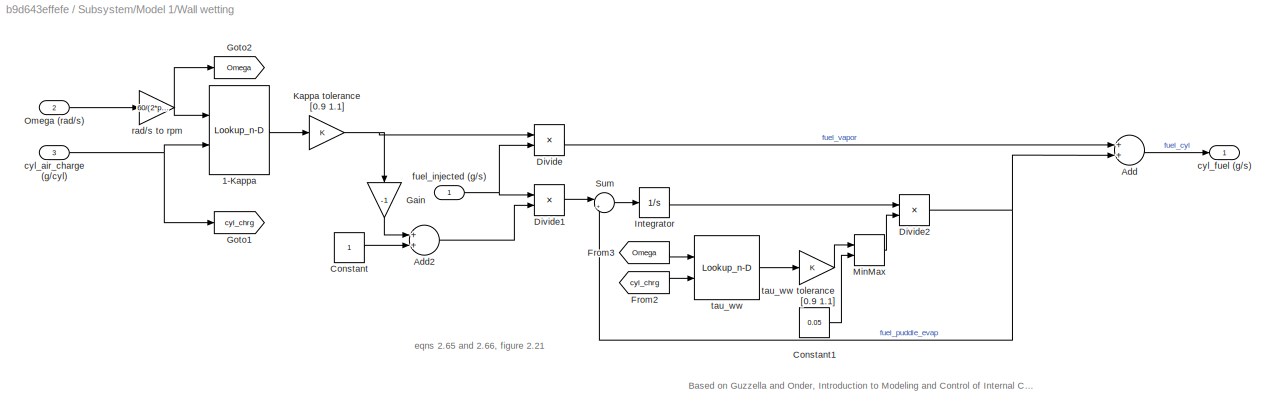
BLOCK [SubSystem] Subsystem/Model 1/Wall wetting
  Ports = [3, 1]
  RequestExecContextInheritance = off
  Variant = off
BLOCK [Lookup_n-D] Subsystem/Model 1/Wall wetting/1-Kappa
  BreakpointsForDimension1 = [1000,1500,2000,2500,3000]
  BreakpointsForDimension2 = [.1,.2,.3,.4]
  Ports = [2, 1]
  RndMeth = Simplest
  Table = reshape([0.8,.7,.7,.8,.9,.7,.66,.65,.73,.85,.66,.66,.63,.66,.8,.6,.6,.6,.6,.7],5,4)
  UseLastTableValue = on
BLOCK [Sum] Subsystem/Model 1/Wall wetting/Add
  InputSameDT = off
  OutDataTypeStr = Inherit: Inherit via internal rule
  Ports = [2, 1]
  SaturateOnIntegerOverflow = off
BLOCK [Sum] Subsystem/Model 1/Wall wetting/Add2
  InputSameDT = off
  OutDataTypeStr = Inherit: Inherit via internal rule
  Ports = [2, 1]
  SaturateOnIntegerOverflow = off
BLOCK [Constant] Subsystem/Model 1/Wall wetting/Constant
BLOCK [Constant] Subsystem/Model 1/Wall wetting/Constant1
  Value = 0.05
BLOCK [Product] Subsystem/Model 1/Wall wetting/Divide
  InputSameDT = off
  Inputs = **
  OutDataTypeStr = Inherit: Inherit via internal rule
  Ports = [2, 1]
  RndMeth = Floor
  SaturateOnIntegerOverflow = off
BLOCK [Product] Subsystem/Model 1/Wall wetting/Divide1
  InputSameDT = off
  Inputs = **
  OutDataTypeStr = Inherit: Inherit via internal rule
  Ports = [2, 1]
  RndMeth = Floor
  SaturateOnIntegerOverflow = off
BLOCK [Product] Subsystem/Model 1/Wall wetting/Divide2
  InputSameDT = off
  Inputs = */
  OutDataTypeStr = Inherit: Inherit via internal rule
  Ports = [2, 1]
  RndMeth = Floor
  SaturateOnIntegerOverflow = off
BLOCK [From] Subsystem/Model 1/Wall wetting/From2
  GotoTag = cyl_chrg
BLOCK [From] Subsystem/Model 1/Wall wetting/From3
  GotoTag = Omega
BLOCK [Gain] Subsystem/Model 1/Wall wetting/Gain
  Gain = -1
  OutDataTypeStr = Inherit: Inherit via internal rule
  ParamDataTypeStr = Inherit: Inherit via internal rule
  SaturateOnIntegerOverflow = off
BLOCK [Goto] Subsystem/Model 1/Wall wetting/Goto1
  GotoTag = cyl_chrg
BLOCK [Goto] Subsystem/Model 1/Wall wetting/Goto2
  GotoTag = Omega
BLOCK [Integrator] Subsystem/Model 1/Wall wetting/Integrator
  InitialCondition = .0112
  Ports = [1, 1]
BLOCK [Gain] Subsystem/Model 1/Wall wetting/Kappa tolerance [0.9 1.1]
  OutDataTypeStr = Inherit: Inherit via internal rule
  ParamDataTypeStr = Inherit: Inherit via internal rule
  SaturateOnIntegerOverflow = off
BLOCK [MinMax] Subsystem/Model 1/Wall wetting/MinMax
  Function = max
  InputSameDT = off
  Inputs = 2
  Ports = [2, 1]
  SaturateOnIntegerOverflow = off
BLOCK [Inport] Subsystem/Model 1/Wall wetting/Omega (rad//s)
  IconDisplay = Port number
  Port = 2
BLOCK [Sum] Subsystem/Model 1/Wall wetting/Sum
  IconShape = round
  InputSameDT = off
  Inputs = |+-
  OutDataTypeStr = Inherit: Inherit via internal rule
  Ports = [2, 1]
  SaturateOnIntegerOverflow = off
BLOCK [Inport] Subsystem/Model 1/Wall wetting/cyl_air_charge (g//cyl)
  IconDisplay = Port number
  Port = 3
BLOCK [Outport] Subsystem/Model 1/Wall wetting/cyl_fuel (g//s)
  IconDisplay = Port number
BLOCK [Inport] Subsystem/Model 1/Wall wetting/fuel_injected (g//s)
  IconDisplay = Port number
BLOCK [Gain] Subsystem/Model 1/Wall wetting/rad//s to rpm
  Gain = 60/(2*pi)
  OutDataTypeStr = Inherit: Inherit via internal rule
  ParamDataTypeStr = Inherit: Inherit via internal rule
  SaturateOnIntegerOverflow = off
BLOCK [Lookup_n-D] Subsystem/Model 1/Wall wetting/tau_ww
  BreakpointsForDimension1 = [1000,1500,2000,2500,3000]
  BreakpointsForDimension2 = [0.1,0.2,0.3,0.4]
  Ports = [2, 1]
  RndMeth = Simplest
  Table = reshape([.4,.3,.35,.3,.2,.22,.22,.4,.35,.5,.20,.22,.5,.4,.35,.35,.3,.45,.5,.4],5,4)
  UseLastTableValue = on
BLOCK [Gain] Subsystem/Model 1/Wall wetting/tau_ww tolerance [0.9 1.1]
  OutDataTypeStr = Inherit: Inherit via internal rule
  ParamDataTypeStr = Inherit: Inherit via internal rule
  SaturateOnIntegerOverflow = off
BLOCK [Outport] Subsystem/Model 1/airbyfuel_ref
  IconDisplay = Port number
  Port = 2
BLOCK [Outport] Subsystem/Model 1/controller_mode
  IconDisplay = Port number
  Port = 3
BLOCK [Inport] Subsystem/Model 1/engine speed (rpm)
  AttributesFormatString = %<Description>
  Description = [900,1100]
  IconDisplay = Port number
  Port = 2
BLOCK [Gain] Subsystem/Model 1/fuel injector tolerance [0.95 1.05]
  Gain = fuel_inj_tol
  OutDataTypeStr = Inherit: Inherit via internal rule
  ParamDataTypeStr = Inherit: Inherit via internal rule
  SaturateOnIntegerOverflow = off
BLOCK [Outport] Subsystem/Model 1/pmode
  IconDisplay = Port number
  Port = 4
BLOCK [Inport] Subsystem/Model 1/throttle input (deg)
  AttributesFormatString = %<Description>
  Description = [0, 81.2]
  IconDisplay = Port number
BLOCK [Outport] Subsystem/Out1
  IconDisplay = Port number
BLOCK [Outport] Subsystem/Out2
  IconDisplay = Port number
  Port = 2
BLOCK [Outport] Subsystem/Out3
  IconDisplay = Port number
  Port = 3
BLOCK [Outport] Subsystem/Out4
  IconDisplay = Port number
  Port = 4
BLOCK [SubSystem] Subsystem/V&V stub system
  Ports = [2, 2]
  RequestExecContextInheritance = off
  TreatAsAtomicUnit = on
  Variant = off
BLOCK [SubSystem] Subsystem/V&V stub system/Calcuate Error
  Ports = [3, 1, 1]
  Priority = 20
  RequestExecContextInheritance = off
  TreatAsAtomicUnit = on
  Variant = off
BLOCK [EnablePort] Subsystem/V&V stub system/Calcuate Error/Enable
  Ports = []
BLOCK [From] Subsystem/V&V stub system/Calcuate Error/From1
  GotoTag = AFREF
BLOCK [From] Subsystem/V&V stub system/Calcuate Error/From2
  GotoTag = AFREF
BLOCK [From] Subsystem/V&V stub system/Calcuate Error/From5
  GotoTag = AF
BLOCK [From] Subsystem/V&V stub system/Calcuate Error/From8
  GotoTag = AF
BLOCK [Goto] Subsystem/V&V stub system/Calcuate Error/Goto
  GotoTag = AF
BLOCK [Goto] Subsystem/V&V stub system/Calcuate Error/Goto1
  GotoTag = AFREF
BLOCK [MultiPortSwitch] Subsystem/V&V stub system/Calcuate Error/Multiport Switch
  InputSameDT = off
  Inputs = 2
  Ports = [3, 1]
  SaturateOnIntegerOverflow = off
BLOCK [SubSystem] Subsystem/V&V stub system/Calcuate Error/RMS error
  Ports = [2, 1, 0, 0, 0, 0, 0, 1]
  RequestExecContextInheritance = off
  TreatAsAtomicUnit = on
  Variant = off
BLOCK [ActionPort] Subsystem/V&V stub system/Calcuate Error/RMS error/Action Port
BLOCK [Constant] Subsystem/V&V stub system/Calcuate Error/RMS error/Constant
  Value = simTime-10
BLOCK [Product] Subsystem/V&V stub system/Calcuate Error/RMS error/Divide
  InputSameDT = off
  Inputs = */
  OutDataTypeStr = Inherit: Inherit via internal rule
  Ports = [2, 1]
  RndMeth = Floor
  SaturateOnIntegerOverflow = off
BLOCK [Integrator] Subsystem/V&V stub system/Calcuate Error/RMS error/Integrator
  Ports = [1, 1]
BLOCK [Math] Subsystem/V&V stub system/Calcuate Error/RMS error/Math Function
  Operator = square
  Ports = [1, 1]
BLOCK [Step] Subsystem/V&V stub system/Calcuate Error/RMS error/MeasureOn
  SampleTime = 0
  Time = 10
BLOCK [Outport] Subsystem/V&V stub system/Calcuate Error/RMS error/Out1
  IconDisplay = Port number
BLOCK [Product] Subsystem/V&V stub system/Calcuate Error/RMS error/Product
  InputSameDT = off
  OutDataTypeStr = Inherit: Inherit via internal rule
  Ports = [2, 1]
  RndMeth = Floor
  SaturateOnIntegerOverflow = off
BLOCK [Sqrt] Subsystem/V&V stub system/Calcuate Error/RMS error/Sqrt
BLOCK [Sum] Subsystem/V&V stub system/Calcuate Error/RMS error/Sum1
  Inputs = +-
  OutDataTypeStr = Inherit: Inherit via back propagation
  Ports = [2, 1]
  RndMeth = Simplest
  SaturateOnIntegerOverflow = off
BLOCK [Inport] Subsystem/V&V stub system/Calcuate Error/RMS error/air_by_fuel 
  IconDisplay = Port number
BLOCK [Inport] Subsystem/V&V stub system/Calcuate Error/RMS error/air_by_fuel_ref
  IconDisplay = Port number
  Port = 2
BLOCK [SwitchCase] Subsystem/V&V stub system/Calcuate Error/Switch Case
  CaseConditions = {1,2}
  Ports = [1, 3]
BLOCK [Terminator] Subsystem/V&V stub system/Calcuate Error/Terminator
BLOCK [Inport] Subsystem/V&V stub system/Calcuate Error/air_by_fuel 
  IconDisplay = Port number
BLOCK [Inport] Subsystem/V&V stub system/Calcuate Error/air_by_fuel_ref
  IconDisplay = Port number
  Port = 3
BLOCK [SubSystem] Subsystem/V&V stub system/Calcuate Error/over(under)shoot
  Ports = [2, 1, 0, 0, 0, 0, 0, 1]
  RequestExecContextInheritance = off
  TreatAsAtomicUnit = on
  Variant = off
BLOCK [ActionPort] Subsystem/V&V stub system/Calcuate Error/over(under)shoot/Action Port
BLOCK [Constant] Subsystem/V&V stub system/Calcuate Error/over(under)shoot/Constant
BLOCK [Product] Subsystem/V&V stub system/Calcuate Error/over(under)shoot/Divide
  InputSameDT = off
  Inputs = */
  OutDataTypeStr = Inherit: Inherit via internal rule
  Ports = [2, 1]
  RndMeth = Floor
  SaturateOnIntegerOverflow = off
BLOCK [Outport] Subsystem/V&V stub system/Calcuate Error/over(under)shoot/Out1
  IconDisplay = Port number
BLOCK [Sum] Subsystem/V&V stub system/Calcuate Error/over(under)shoot/Sum1
  Inputs = +-
  OutDataTypeStr = Inherit: Inherit via back propagation
  Ports = [2, 1]
  RndMeth = Simplest
  SaturateOnIntegerOverflow = off
BLOCK [Inport] Subsystem/V&V stub system/Calcuate Error/over(under)shoot/air_by_fuel 
  IconDisplay = Port number
BLOCK [Inport] Subsystem/V&V stub system/Calcuate Error/over(under)shoot/air_by_fuel_ref
  IconDisplay = Port number
  Port = 2
BLOCK [Outport] Subsystem/V&V stub system/Calcuate Error/s_out 
  IconDisplay = Port number
BLOCK [Inport] Subsystem/V&V stub system/Calcuate Error/spec_num
  IconDisplay = Port number
  OutDataTypeStr = uint8
  Port = 2
BLOCK [Constant] Subsystem/V&V stub system/Constant
  Value = 0.5
BLOCK [DataTypeConversion] Subsystem/V&V stub system/Data Type Conversion
  OutDataTypeStr = double
  RndMeth = Floor
  SaturateOnIntegerOverflow = off
BLOCK [Step] Subsystem/V&V stub system/MeasureOn
  SampleTime = 0
  Time = measureTime
BLOCK [Mux] Subsystem/V&V stub system/Mux
  DisplayOption = bar
  Inputs = 2
  Ports = [2, 1]
BLOCK [RelationalOperator] Subsystem/V&V stub system/Relational Operator
  InputSameDT = off
  Operator = >
  OutDataTypeStr = boolean
  Ports = [2, 1]
BLOCK [Outport] Subsystem/V&V stub system/af_mon
  IconDisplay = Port number
  Port = 2
BLOCK [Inport] Subsystem/V&V stub system/air_by_fuel 
  IconDisplay = Port number
  OutDataTypeStr = double
BLOCK [Inport] Subsystem/V&V stub system/air_by_fuel_ref
  IconDisplay = Port number
  Port = 2
BLOCK [Outport] Subsystem/V&V stub system/s_out 
  IconDisplay = Port number
BLOCK [Constant] Subsystem/V&V stub system/spec_num
  OutDataTypeStr = uint8
  Value = spec_num
BLOCK [Outport] mode
  IconDisplay = Port number
  Port = 2
BLOCK [Outport] pedal angle
  IconDisplay = Port number
  Port = 3
BLOCK [Outport] verificaton measurement
  IconDisplay = Port number
ANNOTATION (root): 1: Feedforward 0: Feedforward + Feedback
ANNOTATION (root): Engine Speed Range: [900 1000]
ANNOTATION (root): NOTE: Click here to initialize the constants
ANNOTATION (root): Powertrain Control Benchmark Model Toyota Technial Center 2014
ANNOTATION (root): This is an air-fuel control model, and an implementation of the 1st model that appears in "Powertrain Control Verification Benchmark", 2014 Hybrid Systems: Computation and Control, X. Jin, J. V. Deshmukh, J.Kapinski, K. Ueda, and K. Butts
ANNOTATION (root): Verification Harness Layer for Fuel Control System Model
ANNOTATION Subsystem: Pedal Angle Range: [0, 61.2) Normal mode [61.2, 81.8] Power mode (the controller will stay in power mode until the pedal input drops below 41.8)
ANNOTATION Subsystem/Model 1: Based on Guzzella and Onder, Introduction to Modeling and Control of Internal Combustion Engine Systems
ANNOTATION Subsystem/Model 1: Based on Simulink Demo, <copyright redacted>
ANNOTATION Subsystem/Model 1: Fuel Control System Model
ANNOTATION Subsystem/Model 1: Powertrain Control Benchmark Model Toyota Technial Center 2014
ANNOTATION Subsystem/Model 1: This is an air-fuel control model, and an implementation of the 1st model that appears in "Powertrain Control Verification Benchmark", 2014 Hybrid Systems: Computation and Control, X. Jin, J. V. Deshmukh, J.Kapinski, K. Ueda, and K. Butts
ANNOTATION Subsystem/Model 1/AF_Controller: Cover Page
ANNOTATION Subsystem/Model 1/AF_Controller: Global Output
ANNOTATION Subsystem/Model 1/AF_Controller/fuel_controller: Global Inputs
ANNOTATION Subsystem/Model 1/AF_Controller/fuel_controller/fuel_controller_10ms: Fuel Controller
ANNOTATION Subsystem/Model 1/AF_Controller/fuel_controller/fuel_controller_10ms/air_estimation: Air Estimation for Fuel Control
ANNOTATION Subsystem/Model 1/AF_Controller/fuel_controller/fuel_controller_10ms/air_estimation: Pumping: -0.366 + 0.08979*u[1]*u[2] - 0.0337*u[2]*u[1]*u[1] + 0.0001*u[1]*u[2]*u[2]
ANNOTATION Subsystem/Model 1/AF_Controller/fuel_controller/fuel_controller_10ms/feedback_PI_controller: Feedback PI Controller
ANNOTATION Subsystem/Model 1/AF_Controller/fuel_controller/fuel_controller_10ms/feedforward_controller: Feedforward Controller
ANNOTATION Subsystem/Model 1/AF_Controller/fuel_controller/fuel_controller_mode_10ms: Controller Mode/Reference Selection
ANNOTATION Subsystem/Model 1/AF_Controller/fuel_controller/fuel_controller_mode_10ms/normal_mode_detection: NOTE: For first 10 seconds, controller uses only feedforward control to ignore the initialization issue.
ANNOTATION Subsystem/Model 1/AF_Controller/fuel_controller/fuel_controller_mode_10ms/normal_mode_detection: Normal Mode Detection (Cold Start to Normal)
ANNOTATION Subsystem/Model 1/AF_Controller/fuel_controller/fuel_controller_mode_10ms/power_mode_detection: Power Mode Detection
ANNOTATION Subsystem/Model 1/AF_Controller/fuel_controller/fuel_controller_mode_10ms/sensor_failure_detection: A/F Sensor Failuer Detection
ANNOTATION Subsystem/Model 1/Cylinder and Exhaust: Based on Guzzella and Onder, Introduction to Modeling and Control of Internal Combustion Engine Systems
ANNOTATION Subsystem/Model 1/Cylinder and Exhaust: eqn 2.96, figure 4.16
ANNOTATION Subsystem/Model 1/Cylinder and Exhaust: eqn 2.96, figure 4.16 (simp)
ANNOTATION Subsystem/Model 1/Intake Manifold: Based on Simulink Demo, <copyright redacted>
ANNOTATION Subsystem/Model 1/Intake Manifold: Intake Manifold Vacuum
ANNOTATION Subsystem/Model 1/Throttle: Based on Simulink Demo, <copyright redacted>
ANNOTATION Subsystem/Model 1/Throttle: Throttle Flow vs. Valve Angle and Pressure
ANNOTATION Subsystem/Model 1/Wall wetting: Based on Guzzella and Onder, Introduction to Modeling and Control of Internal Combustion Engine Systems
ANNOTATION Subsystem/Model 1/Wall wetting: eqns 2.65 and 2.66, figure 2.21
NET  2:1 -> Multiport Switch1:1, Multiport Switch:1
LINE 3400 ±400:1 -> Multiport Switch:3
LINE In1:1 -> Multiport Switch1:2
LINE In2:1 -> Multiport Switch:2
NET Multiport Switch1:1 -> Monitor :1, Scope2:1, Subsystem:1, pedal angle:1
NET Multiport Switch:1 -> Monitor :4, Scope4:1, Subsystem:2
LINE Signal Builder:1 -> Multiport Switch1:3
LINE Subsystem/Data Type Conversion:1 -> Subsystem/Out4:1
LINE Subsystem/In1:1 -> Subsystem/Model 1:1
LINE Subsystem/In2:1 -> Subsystem/Model 1:2
NET Subsystem/Model 1/(rpm) to (rad//s):1 -> Subsystem/Model 1/Goto:1, Subsystem/Model 1/Intake Manifold:2
LINE Subsystem/Model 1/A//F Sensor Fault Injection:1 -> Subsystem/Model 1/Terminator:1
LINE Subsystem/Model 1/A//F sensor tolerance [0.99 1.01]:1 -> Subsystem/Model 1/Data Type Conversion3:1
LINE Subsystem/Model 1/AF_Controller/DataStoreRead1:1 -> Subsystem/Model 1/AF_Controller/controller_mode:1
LINE Subsystem/Model 1/AF_Controller/DataStoreRead2:1 -> Subsystem/Model 1/AF_Controller/airbyfuel_ref:1
LINE Subsystem/Model 1/AF_Controller/DataStoreRead:1 -> Subsystem/Model 1/AF_Controller/commanded_fuel_gps:1
LINE Subsystem/Model 1/AF_Controller/PulseGenerator_10ms:1 -> Subsystem/Model 1/AF_Controller/fuel_controller:1
LINE Subsystem/Model 1/AF_Controller/airbyfuel_meas:1 -> Subsystem/Model 1/AF_Controller/fuel_controller:5
LINE Subsystem/Model 1/AF_Controller/engine_speed_radps:1 -> Subsystem/Model 1/AF_Controller/fuel_controller:2
LINE Subsystem/Model 1/AF_Controller/fuel_controller/airbyfuel_meas:1 -> Subsystem/Model 1/AF_Controller/fuel_controller/DataStoreWrite2:1
LINE Subsystem/Model 1/AF_Controller/fuel_controller/engine_speed:1 -> Subsystem/Model 1/AF_Controller/fuel_controller/DataStoreWrite:1
LINE Subsystem/Model 1/AF_Controller/fuel_controller/fuel_controller_10ms/Constant2:1 -> Subsystem/Model 1/AF_Controller/fuel_controller/fuel_controller_10ms/Sum1:1
LINE Subsystem/Model 1/AF_Controller/fuel_controller/fuel_controller_10ms/Constant3:1 -> Subsystem/Model 1/AF_Controller/fuel_controller/fuel_controller_10ms/Switch:1
LINE Subsystem/Model 1/AF_Controller/fuel_controller/fuel_controller_10ms/DataStoreRead1:1 -> Subsystem/Model 1/AF_Controller/fuel_controller/fuel_controller_10ms/air_estimation:2
LINE Subsystem/Model 1/AF_Controller/fuel_controller/fuel_controller_10ms/DataStoreRead2:1 -> Subsystem/Model 1/AF_Controller/fuel_controller/fuel_controller_10ms/feedback_PI_controller:2
NET Subsystem/Model 1/AF_Controller/fuel_controller/fuel_controller_10ms/DataStoreRead3:1 -> Subsystem/Model 1/AF_Controller/fuel_controller/fuel_controller_10ms/Logical Operator2:1, Subsystem/Model 1/AF_Controller/fuel_controller/fuel_controller_10ms/Switch:2
NET Subsystem/Model 1/AF_Controller/fuel_controller/fuel_controller_10ms/DataStoreRead4:1 -> Subsystem/Model 1/AF_Controller/fuel_controller/fuel_controller_10ms/feedback_PI_controller:1, Subsystem/Model 1/AF_Controller/fuel_controller/fuel_controller_10ms/feedforward_controller:2
LINE Subsystem/Model 1/AF_Controller/fuel_controller/fuel_controller_10ms/DataStoreRead:1 -> Subsystem/Model 1/AF_Controller/fuel_controller/fuel_controller_10ms/air_estimation:1
LINE Subsystem/Model 1/AF_Controller/fuel_controller/fuel_controller_10ms/Logical Operator2:1 -> Subsystem/Model 1/AF_Controller/fuel_controller/fuel_controller_10ms/feedback_PI_controller:enable
LINE Subsystem/Model 1/AF_Controller/fuel_controller/fuel_controller_10ms/Prod1:1 -> Subsystem/Model 1/AF_Controller/fuel_controller/fuel_controller_10ms/fuel_saturation:1
LINE Subsystem/Model 1/AF_Controller/fuel_controller/fuel_controller_10ms/Sum1:1 -> Subsystem/Model 1/AF_Controller/fuel_controller/fuel_controller_10ms/fb_fuel_saturation:1
LINE Subsystem/Model 1/AF_Controller/fuel_controller/fuel_controller_10ms/Switch:1 -> Subsystem/Model 1/AF_Controller/fuel_controller/fuel_controller_10ms/Prod1:2
LINE Subsystem/Model 1/AF_Controller/fuel_controller/fuel_controller_10ms/air_estimation/Constant1:1 -> Subsystem/Model 1/AF_Controller/fuel_controller/fuel_controller_10ms/air_estimation/Prod1:2
LINE Subsystem/Model 1/AF_Controller/fuel_controller/fuel_controller_10ms/air_estimation/Constant2:1 -> Subsystem/Model 1/AF_Controller/fuel_controller/fuel_controller_10ms/air_estimation/Sum3:1
LINE Subsystem/Model 1/AF_Controller/fuel_controller/fuel_controller_10ms/air_estimation/Constant3:1 -> Subsystem/Model 1/AF_Controller/fuel_controller/fuel_controller_10ms/air_estimation/Prod2:3
LINE Subsystem/Model 1/AF_Controller/fuel_controller/fuel_controller_10ms/air_estimation/Constant4:1 -> Subsystem/Model 1/AF_Controller/fuel_controller/fuel_controller_10ms/air_estimation/Prod3:4
LINE Subsystem/Model 1/AF_Controller/fuel_controller/fuel_controller_10ms/air_estimation/Constant5:1 -> Subsystem/Model 1/AF_Controller/fuel_controller/fuel_controller_10ms/air_estimation/Prod4:4
LINE Subsystem/Model 1/AF_Controller/fuel_controller/fuel_controller_10ms/air_estimation/Gain:1 -> Subsystem/Model 1/AF_Controller/fuel_controller/fuel_controller_10ms/air_estimation/Prod1:1
LINE Subsystem/Model 1/AF_Controller/fuel_controller/fuel_controller_10ms/air_estimation/Prod1:1 -> Subsystem/Model 1/AF_Controller/fuel_controller/fuel_controller_10ms/air_estimation/Sum2:1
LINE Subsystem/Model 1/AF_Controller/fuel_controller/fuel_controller_10ms/air_estimation/Prod2:1 -> Subsystem/Model 1/AF_Controller/fuel_controller/fuel_controller_10ms/air_estimation/Sum3:2
LINE Subsystem/Model 1/AF_Controller/fuel_controller/fuel_controller_10ms/air_estimation/Prod3:1 -> Subsystem/Model 1/AF_Controller/fuel_controller/fuel_controller_10ms/air_estimation/Sum3:3
LINE Subsystem/Model 1/AF_Controller/fuel_controller/fuel_controller_10ms/air_estimation/Prod4:1 -> Subsystem/Model 1/AF_Controller/fuel_controller/fuel_controller_10ms/air_estimation/Sum3:4
LINE Subsystem/Model 1/AF_Controller/fuel_controller/fuel_controller_10ms/air_estimation/Sum1:1 -> Subsystem/Model 1/AF_Controller/fuel_controller/fuel_controller_10ms/air_estimation/Gain:1
LINE Subsystem/Model 1/AF_Controller/fuel_controller/fuel_controller_10ms/air_estimation/Sum2:1 -> Subsystem/Model 1/AF_Controller/fuel_controller/fuel_controller_10ms/air_estimation/UnitDelay1:1
NET Subsystem/Model 1/AF_Controller/fuel_controller/fuel_controller_10ms/air_estimation/Sum3:1 -> Subsystem/Model 1/AF_Controller/fuel_controller/fuel_controller_10ms/air_estimation/Sum1:2, Subsystem/Model 1/AF_Controller/fuel_controller/fuel_controller_10ms/air_estimation/estimated_cyl_air_flow_gps:1
NET Subsystem/Model 1/AF_Controller/fuel_controller/fuel_controller_10ms/air_estimation/UnitDelay1:1 -> Subsystem/Model 1/AF_Controller/fuel_controller/fuel_controller_10ms/air_estimation/Prod2:1, Subsystem/Model 1/AF_Controller/fuel_controller/fuel_controller_10ms/air_estimation/Prod3:1, Subsystem/Model 1/AF_Controller/fuel_controller/fuel_controller_10ms/air_estimation/Prod3:2, Subsystem/Model 1/AF_Controller/fuel_controller/fuel_controller_10ms/air_estimation/Prod4:3, Subsystem/Model 1/AF_Controller/fuel_controller/fuel_controller_10ms/air_estimation/Sum2:2
NET Subsystem/Model 1/AF_Controller/fuel_controller/fuel_controller_10ms/air_estimation/engine_speed_radps:1 -> Subsystem/Model 1/AF_Controller/fuel_controller/fuel_controller_10ms/air_estimation/Prod2:2, Subsystem/Model 1/AF_Controller/fuel_controller/fuel_controller_10ms/air_estimation/Prod3:3, Subsystem/Model 1/AF_Controller/fuel_controller/fuel_controller_10ms/air_estimation/Prod4:1, Subsystem/Model 1/AF_Controller/fuel_controller/fuel_controller_10ms/air_estimation/Prod4:2
LINE Subsystem/Model 1/AF_Controller/fuel_controller/fuel_controller_10ms/air_estimation/throttle_flow_gps:1 -> Subsystem/Model 1/AF_Controller/fuel_controller/fuel_controller_10ms/air_estimation/Sum1:1
LINE Subsystem/Model 1/AF_Controller/fuel_controller/fuel_controller_10ms/air_estimation:1 -> Subsystem/Model 1/AF_Controller/fuel_controller/fuel_controller_10ms/feedforward_controller:1
LINE Subsystem/Model 1/AF_Controller/fuel_controller/fuel_controller_10ms/fb_fuel_saturation:1 -> Subsystem/Model 1/AF_Controller/fuel_controller/fuel_controller_10ms/Switch:3
LINE Subsystem/Model 1/AF_Controller/fuel_controller/fuel_controller_10ms/feedback_PI_controller/Constant1:1 -> Subsystem/Model 1/AF_Controller/fuel_controller/fuel_controller_10ms/feedback_PI_controller/Prod1:2
LINE Subsystem/Model 1/AF_Controller/fuel_controller/fuel_controller_10ms/feedback_PI_controller/Gain1:1 -> Subsystem/Model 1/AF_Controller/fuel_controller/fuel_controller_10ms/feedback_PI_controller/Prod1:1
LINE Subsystem/Model 1/AF_Controller/fuel_controller/fuel_controller_10ms/feedback_PI_controller/Gain:1 -> Subsystem/Model 1/AF_Controller/fuel_controller/fuel_controller_10ms/feedback_PI_controller/Sum3:1
LINE Subsystem/Model 1/AF_Controller/fuel_controller/fuel_controller_10ms/feedback_PI_controller/Prod1:1 -> Subsystem/Model 1/AF_Controller/fuel_controller/fuel_controller_10ms/feedback_PI_controller/Sum2:1
NET Subsystem/Model 1/AF_Controller/fuel_controller/fuel_controller_10ms/feedback_PI_controller/Sum1:1 -> Subsystem/Model 1/AF_Controller/fuel_controller/fuel_controller_10ms/feedback_PI_controller/Gain1:1, Subsystem/Model 1/AF_Controller/fuel_controller/fuel_controller_10ms/feedback_PI_controller/Gain:1
NET Subsystem/Model 1/AF_Controller/fuel_controller/fuel_controller_10ms/feedback_PI_controller/Sum2:1 -> Subsystem/Model 1/AF_Controller/fuel_controller/fuel_controller_10ms/feedback_PI_controller/Sum3:2, Subsystem/Model 1/AF_Controller/fuel_controller/fuel_controller_10ms/feedback_PI_controller/UnitDelay1:1
LINE Subsystem/Model 1/AF_Controller/fuel_controller/fuel_controller_10ms/feedback_PI_controller/Sum3:1 -> Subsystem/Model 1/AF_Controller/fuel_controller/fuel_controller_10ms/feedback_PI_controller/closed_loop_fuel_trim:1
LINE Subsystem/Model 1/AF_Controller/fuel_controller/fuel_controller_10ms/feedback_PI_controller/UnitDelay1:1 -> Subsystem/Model 1/AF_Controller/fuel_controller/fuel_controller_10ms/feedback_PI_controller/Sum2:2
LINE Subsystem/Model 1/AF_Controller/fuel_controller/fuel_controller_10ms/feedback_PI_controller/airbyfuel_meas:1 -> Subsystem/Model 1/AF_Controller/fuel_controller/fuel_controller_10ms/feedback_PI_controller/Sum1:2
LINE Subsystem/Model 1/AF_Controller/fuel_controller/fuel_controller_10ms/feedback_PI_controller/airbyfuel_reference:1 -> Subsystem/Model 1/AF_Controller/fuel_controller/fuel_controller_10ms/feedback_PI_controller/Sum1:1
LINE Subsystem/Model 1/AF_Controller/fuel_controller/fuel_controller_10ms/feedback_PI_controller:1 -> Subsystem/Model 1/AF_Controller/fuel_controller/fuel_controller_10ms/Sum1:2
LINE Subsystem/Model 1/AF_Controller/fuel_controller/fuel_controller_10ms/feedforward_controller/Product:1 -> Subsystem/Model 1/AF_Controller/fuel_controller/fuel_controller_10ms/feedforward_controller/desired_fuel_mass_gps:1
LINE Subsystem/Model 1/AF_Controller/fuel_controller/fuel_controller_10ms/feedforward_controller/airbyfuel_reference:1 -> Subsystem/Model 1/AF_Controller/fuel_controller/fuel_controller_10ms/feedforward_controller/Product:2
LINE Subsystem/Model 1/AF_Controller/fuel_controller/fuel_controller_10ms/feedforward_controller/estimated_cyl_air_flow_gps:1 -> Subsystem/Model 1/AF_Controller/fuel_controller/fuel_controller_10ms/feedforward_controller/Product:1
LINE Subsystem/Model 1/AF_Controller/fuel_controller/fuel_controller_10ms/feedforward_controller:1 -> Subsystem/Model 1/AF_Controller/fuel_controller/fuel_controller_10ms/Prod1:1
LINE Subsystem/Model 1/AF_Controller/fuel_controller/fuel_controller_10ms/fuel_saturation:1 -> Subsystem/Model 1/AF_Controller/fuel_controller/fuel_controller_10ms/DataStoreWrite:1
LINE Subsystem/Model 1/AF_Controller/fuel_controller/fuel_controller_mode_10ms/Constant:1 -> Subsystem/Model 1/AF_Controller/fuel_controller/fuel_controller_mode_10ms/Manual Switch:2
LINE Subsystem/Model 1/AF_Controller/fuel_controller/fuel_controller_mode_10ms/DataStoreRead2:1 -> Subsystem/Model 1/AF_Controller/fuel_controller/fuel_controller_mode_10ms/sensor_failure_detection:1
LINE Subsystem/Model 1/AF_Controller/fuel_controller/fuel_controller_mode_10ms/DataStoreRead4:1 -> Subsystem/Model 1/AF_Controller/fuel_controller/fuel_controller_mode_10ms/power_mode_detection:1
LINE Subsystem/Model 1/AF_Controller/fuel_controller/fuel_controller_mode_10ms/Logical Operator1:1 -> Subsystem/Model 1/AF_Controller/fuel_controller/fuel_controller_mode_10ms/DataStoreWrite:1
LINE Subsystem/Model 1/AF_Controller/fuel_controller/fuel_controller_mode_10ms/Logical Operator2:1 -> Subsystem/Model 1/AF_Controller/fuel_controller/fuel_controller_mode_10ms/Logical Operator1:2
LINE Subsystem/Model 1/AF_Controller/fuel_controller/fuel_controller_mode_10ms/Logical Operator3:1 -> Subsystem/Model 1/AF_Controller/fuel_controller/fuel_controller_mode_10ms/Switch:2
NET Subsystem/Model 1/AF_Controller/fuel_controller/fuel_controller_mode_10ms/Manual Switch:1 -> Subsystem/Model 1/AF_Controller/fuel_controller/fuel_controller_mode_10ms/Logical Operator2:1, Subsystem/Model 1/AF_Controller/fuel_controller/fuel_controller_mode_10ms/Logical Operator3:1
LINE Subsystem/Model 1/AF_Controller/fuel_controller/fuel_controller_mode_10ms/Switch:1 -> Subsystem/Model 1/AF_Controller/fuel_controller/fuel_controller_mode_10ms/DataStoreWrite1:1
LINE Subsystem/Model 1/AF_Controller/fuel_controller/fuel_controller_mode_10ms/airbyfuel_reference:1 -> Subsystem/Model 1/AF_Controller/fuel_controller/fuel_controller_mode_10ms/Switch:3
LINE Subsystem/Model 1/AF_Controller/fuel_controller/fuel_controller_mode_10ms/airbyfuel_reference_power:1 -> Subsystem/Model 1/AF_Controller/fuel_controller/fuel_controller_mode_10ms/Switch:1
NET Subsystem/Model 1/AF_Controller/fuel_controller/fuel_controller_mode_10ms/normal_mode_detection/Logical Operator:1 -> Subsystem/Model 1/AF_Controller/fuel_controller/fuel_controller_mode_10ms/normal_mode_detection/Unit Delay1:1, Subsystem/Model 1/AF_Controller/fuel_controller/fuel_controller_mode_10ms/normal_mode_detection/normal_on:1
LINE Subsystem/Model 1/AF_Controller/fuel_controller/fuel_controller_mode_10ms/normal_mode_detection/Relational Operator:1 -> Subsystem/Model 1/AF_Controller/fuel_controller/fuel_controller_mode_10ms/normal_mode_detection/Logical Operator:1
NET Subsystem/Model 1/AF_Controller/fuel_controller/fuel_controller_mode_10ms/normal_mode_detection/Sum:1 -> Subsystem/Model 1/AF_Controller/fuel_controller/fuel_controller_mode_10ms/normal_mode_detection/Relational Operator:1, Subsystem/Model 1/AF_Controller/fuel_controller/fuel_controller_mode_10ms/normal_mode_detection/Unit Delay2:1
LINE Subsystem/Model 1/AF_Controller/fuel_controller/fuel_controller_mode_10ms/normal_mode_detection/Unit Delay1:1 -> Subsystem/Model 1/AF_Controller/fuel_controller/fuel_controller_mode_10ms/normal_mode_detection/Logical Operator:2
LINE Subsystem/Model 1/AF_Controller/fuel_controller/fuel_controller_mode_10ms/normal_mode_detection/Unit Delay2:1 -> Subsystem/Model 1/AF_Controller/fuel_controller/fuel_controller_mode_10ms/normal_mode_detection/Sum:1
LINE Subsystem/Model 1/AF_Controller/fuel_controller/fuel_controller_mode_10ms/normal_mode_detection/normal_mode_start_sec:1 -> Subsystem/Model 1/AF_Controller/fuel_controller/fuel_controller_mode_10ms/normal_mode_detection/Relational Operator:2
LINE Subsystem/Model 1/AF_Controller/fuel_controller/fuel_controller_mode_10ms/normal_mode_detection/sampling_sec:1 -> Subsystem/Model 1/AF_Controller/fuel_controller/fuel_controller_mode_10ms/normal_mode_detection/Sum:2
LINE Subsystem/Model 1/AF_Controller/fuel_controller/fuel_controller_mode_10ms/normal_mode_detection:1 -> Subsystem/Model 1/AF_Controller/fuel_controller/fuel_controller_mode_10ms/Manual Switch:1
LINE Subsystem/Model 1/AF_Controller/fuel_controller/fuel_controller_mode_10ms/power_mode_detection/Constant1:1 -> Subsystem/Model 1/AF_Controller/fuel_controller/fuel_controller_mode_10ms/power_mode_detection/Sum:2
NET Subsystem/Model 1/AF_Controller/fuel_controller/fuel_controller_mode_10ms/power_mode_detection/Constant:1 -> Subsystem/Model 1/AF_Controller/fuel_controller/fuel_controller_mode_10ms/power_mode_detection/Sum:1, Subsystem/Model 1/AF_Controller/fuel_controller/fuel_controller_mode_10ms/power_mode_detection/Switch:1
NET Subsystem/Model 1/AF_Controller/fuel_controller/fuel_controller_mode_10ms/power_mode_detection/Relational Operator1:1 -> Subsystem/Model 1/AF_Controller/fuel_controller/fuel_controller_mode_10ms/power_mode_detection/Unit Delay1:1, Subsystem/Model 1/AF_Controller/fuel_controller/fuel_controller_mode_10ms/power_mode_detection/power_on:1
LINE Subsystem/Model 1/AF_Controller/fuel_controller/fuel_controller_mode_10ms/power_mode_detection/Sum:1 -> Subsystem/Model 1/AF_Controller/fuel_controller/fuel_controller_mode_10ms/power_mode_detection/Switch:3
LINE Subsystem/Model 1/AF_Controller/fuel_controller/fuel_controller_mode_10ms/power_mode_detection/Switch:1 -> Subsystem/Model 1/AF_Controller/fuel_controller/fuel_controller_mode_10ms/power_mode_detection/Relational Operator1:2
LINE Subsystem/Model 1/AF_Controller/fuel_controller/fuel_controller_mode_10ms/power_mode_detection/Unit Delay1:1 -> Subsystem/Model 1/AF_Controller/fuel_controller/fuel_controller_mode_10ms/power_mode_detection/Switch:2
LINE Subsystem/Model 1/AF_Controller/fuel_controller/fuel_controller_mode_10ms/power_mode_detection/throttle_angle:1 -> Subsystem/Model 1/AF_Controller/fuel_controller/fuel_controller_mode_10ms/power_mode_detection/Relational Operator1:1
NET Subsystem/Model 1/AF_Controller/fuel_controller/fuel_controller_mode_10ms/power_mode_detection:1 -> Subsystem/Model 1/AF_Controller/fuel_controller/fuel_controller_mode_10ms/Logical Operator1:3, Subsystem/Model 1/AF_Controller/fuel_controller/fuel_controller_mode_10ms/Logical Operator3:2, Subsystem/Model 1/AF_Controller/fuel_controller/fuel_controller_mode_10ms/pmode:1
NET Subsystem/Model 1/AF_Controller/fuel_controller/fuel_controller_mode_10ms/sensor_failure_detection/Logical Operator:1 -> Subsystem/Model 1/AF_Controller/fuel_controller/fuel_controller_mode_10ms/sensor_failure_detection/Unit Delay:1, Subsystem/Model 1/AF_Controller/fuel_controller/fuel_controller_mode_10ms/sensor_failure_detection/fail_on:1
LINE Subsystem/Model 1/AF_Controller/fuel_controller/fuel_controller_mode_10ms/sensor_failure_detection/Relational Operator:1 -> Subsystem/Model 1/AF_Controller/fuel_controller/fuel_controller_mode_10ms/sensor_failure_detection/Logical Operator:1
LINE Subsystem/Model 1/AF_Controller/fuel_controller/fuel_controller_mode_10ms/sensor_failure_detection/Unit Delay:1 -> Subsystem/Model 1/AF_Controller/fuel_controller/fuel_controller_mode_10ms/sensor_failure_detection/Logical Operator:2
LINE Subsystem/Model 1/AF_Controller/fuel_controller/fuel_controller_mode_10ms/sensor_failure_detection/airbyfuel_meas:1 -> Subsystem/Model 1/AF_Controller/fuel_controller/fuel_controller_mode_10ms/sensor_failure_detection/Relational Operator:1
LINE Subsystem/Model 1/AF_Controller/fuel_controller/fuel_controller_mode_10ms/sensor_failure_detection/threshold:1 -> Subsystem/Model 1/AF_Controller/fuel_controller/fuel_controller_mode_10ms/sensor_failure_detection/Relational Operator:2
LINE Subsystem/Model 1/AF_Controller/fuel_controller/fuel_controller_mode_10ms/sensor_failure_detection:1 -> Subsystem/Model 1/AF_Controller/fuel_controller/fuel_controller_mode_10ms/Logical Operator1:1
LINE Subsystem/Model 1/AF_Controller/fuel_controller/fuel_controller_mode_10ms:1 -> Subsystem/Model 1/AF_Controller/fuel_controller/pmode:1
LINE Subsystem/Model 1/AF_Controller/fuel_controller/throttle_angle_deg:1 -> Subsystem/Model 1/AF_Controller/fuel_controller/DataStoreWrite3:1
LINE Subsystem/Model 1/AF_Controller/fuel_controller/throttle_flow:1 -> Subsystem/Model 1/AF_Controller/fuel_controller/DataStoreWrite1:1
NET Subsystem/Model 1/AF_Controller/fuel_controller/trigger_10ms:1 -> Subsystem/Model 1/AF_Controller/fuel_controller/fuel_controller_10ms:trigger, Subsystem/Model 1/AF_Controller/fuel_controller/fuel_controller_mode_10ms:trigger
LINE Subsystem/Model 1/AF_Controller/fuel_controller:1 -> Subsystem/Model 1/AF_Controller/pmode:1
LINE Subsystem/Model 1/AF_Controller/throttle_angle_deg:1 -> Subsystem/Model 1/AF_Controller/fuel_controller:3
LINE Subsystem/Model 1/AF_Controller/throttle_flow_gps:1 -> Subsystem/Model 1/AF_Controller/fuel_controller:4
LINE Subsystem/Model 1/AF_Controller:1 -> Subsystem/Model 1/Data Type Conversion:1
LINE Subsystem/Model 1/AF_Controller:2 -> Subsystem/Model 1/controller_mode:1
LINE Subsystem/Model 1/AF_Controller:3 -> Subsystem/Model 1/airbyfuel_ref:1
LINE Subsystem/Model 1/AF_Controller:4 -> Subsystem/Model 1/pmode:1
LINE Subsystem/Model 1/Atmospheric Pressure (bar):1 -> Subsystem/Model 1/Throttle:3
LINE Subsystem/Model 1/Base opening angle:1 -> Subsystem/Model 1/Sum:2
LINE Subsystem/Model 1/Constant:1 -> Subsystem/Model 1/Goto1:1
LINE Subsystem/Model 1/Cylinder and Exhaust/A//F_sensor/A//F_sensor:1 -> Subsystem/Model 1/Cylinder and Exhaust/A//F_sensor/Out:1
LINE Subsystem/Model 1/Cylinder and Exhaust/A//F_sensor/Filter/Gain:1 -> Subsystem/Model 1/Cylinder and Exhaust/A//F_sensor/Filter/Integrator:1
LINE Subsystem/Model 1/Cylinder and Exhaust/A//F_sensor/Filter/In:1 -> Subsystem/Model 1/Cylinder and Exhaust/A//F_sensor/Filter/Sum:1
NET Subsystem/Model 1/Cylinder and Exhaust/A//F_sensor/Filter/Integrator:1 -> Subsystem/Model 1/Cylinder and Exhaust/A//F_sensor/Filter/Out:1, Subsystem/Model 1/Cylinder and Exhaust/A//F_sensor/Filter/Sum:2
LINE Subsystem/Model 1/Cylinder and Exhaust/A//F_sensor/Filter/Sum:1 -> Subsystem/Model 1/Cylinder and Exhaust/A//F_sensor/Filter/Gain:1
LINE Subsystem/Model 1/Cylinder and Exhaust/A//F_sensor/Filter:1 -> Subsystem/Model 1/Cylinder and Exhaust/A//F_sensor/A//F_sensor:1
LINE Subsystem/Model 1/Cylinder and Exhaust/A//F_sensor/In:1 -> Subsystem/Model 1/Cylinder and Exhaust/A//F_sensor/Filter:1
NET Subsystem/Model 1/Cylinder and Exhaust/A//F_sensor:1 -> Subsystem/Model 1/Cylinder and Exhaust/Switch:3, Subsystem/Model 1/Cylinder and Exhaust/airbyfuel_mon :1
LINE Subsystem/Model 1/Cylinder and Exhaust/Divide:1 -> Subsystem/Model 1/Cylinder and Exhaust/fuel system transport delay:1
LINE Subsystem/Model 1/Cylinder and Exhaust/FaultySensorOutput:1 -> Subsystem/Model 1/Cylinder and Exhaust/Switch:1
LINE Subsystem/Model 1/Cylinder and Exhaust/Filter/Gain1:1 -> Subsystem/Model 1/Cylinder and Exhaust/Filter/Integrator:1
NET Subsystem/Model 1/Cylinder and Exhaust/Filter/Integrator:1 -> Subsystem/Model 1/Cylinder and Exhaust/Filter/Sum:2, Subsystem/Model 1/Cylinder and Exhaust/Filter/out:1
LINE Subsystem/Model 1/Cylinder and Exhaust/Filter/Sum:1 -> Subsystem/Model 1/Cylinder and Exhaust/Filter/Gain1:1
LINE Subsystem/Model 1/Cylinder and Exhaust/Filter/in:1 -> Subsystem/Model 1/Cylinder and Exhaust/Filter/Sum:1
LINE Subsystem/Model 1/Cylinder and Exhaust/Filter:1 -> Subsystem/Model 1/Cylinder and Exhaust/A//F_sensor:1
LINE Subsystem/Model 1/Cylinder and Exhaust/From1:1 -> Subsystem/Model 1/Cylinder and Exhaust/Product1:2
LINE Subsystem/Model 1/Cylinder and Exhaust/From3:1 -> Subsystem/Model 1/Cylinder and Exhaust/delay (s):2
NET Subsystem/Model 1/Cylinder and Exhaust/Gain:1 -> Subsystem/Model 1/Cylinder and Exhaust/Goto:1, Subsystem/Model 1/Cylinder and Exhaust/cyl_air_charge (g//cyl):1
NET Subsystem/Model 1/Cylinder and Exhaust/Omega (rad//s):1 -> Subsystem/Model 1/Cylinder and Exhaust/Goto1:1, Subsystem/Model 1/Cylinder and Exhaust/rad//s to rpm:1
LINE Subsystem/Model 1/Cylinder and Exhaust/Product1:1 -> Subsystem/Model 1/Cylinder and Exhaust/Gain:1
LINE Subsystem/Model 1/Cylinder and Exhaust/SensorFault:1 -> Subsystem/Model 1/Cylinder and Exhaust/Switch:2
LINE Subsystem/Model 1/Cylinder and Exhaust/Switch:1 -> Subsystem/Model 1/Cylinder and Exhaust/airbyfue_meas:1
NET Subsystem/Model 1/Cylinder and Exhaust/cyl_air (g//s):1 -> Subsystem/Model 1/Cylinder and Exhaust/Divide:1, Subsystem/Model 1/Cylinder and Exhaust/Product1:1
LINE Subsystem/Model 1/Cylinder and Exhaust/cyl_fuel (g//s):1 -> Subsystem/Model 1/Cylinder and Exhaust/Divide:2
LINE Subsystem/Model 1/Cylinder and Exhaust/delay (s):1 -> Subsystem/Model 1/Cylinder and Exhaust/fuel system transport delay:2
LINE Subsystem/Model 1/Cylinder and Exhaust/fuel system transport delay:1 -> Subsystem/Model 1/Cylinder and Exhaust/Filter:1
LINE Subsystem/Model 1/Cylinder and Exhaust/rad//s to rpm:1 -> Subsystem/Model 1/Cylinder and Exhaust/delay (s):1
LINE Subsystem/Model 1/Cylinder and Exhaust:1 -> Subsystem/Model 1/A//F sensor tolerance [0.99 1.01]:1
LINE Subsystem/Model 1/Cylinder and Exhaust:2 -> Subsystem/Model 1/Wall wetting:3
NET Subsystem/Model 1/Cylinder and Exhaust:3 -> Subsystem/Model 1/A//F:1, Subsystem/Model 1/Monitor:1
LINE Subsystem/Model 1/Data Type Conversion1:1 -> Subsystem/Model 1/AF_Controller:1
LINE Subsystem/Model 1/Data Type Conversion2:1 -> Subsystem/Model 1/AF_Controller:3
LINE Subsystem/Model 1/Data Type Conversion3:1 -> Subsystem/Model 1/AF_Controller:4
LINE Subsystem/Model 1/Data Type Conversion4:1 -> Subsystem/Model 1/AF_Controller:2
LINE Subsystem/Model 1/Data Type Conversion:1 -> Subsystem/Model 1/fuel injector tolerance [0.95 1.05]:1
LINE Subsystem/Model 1/From1:1 -> Subsystem/Model 1/Wall wetting:2
LINE Subsystem/Model 1/From2:1 -> Subsystem/Model 1/Data Type Conversion1:1
LINE Subsystem/Model 1/From3:1 -> Subsystem/Model 1/Cylinder and Exhaust:4
LINE Subsystem/Model 1/From4:1 -> Subsystem/Model 1/Cylinder and Exhaust:3
LINE Subsystem/Model 1/From5:1 -> Subsystem/Model 1/MAF sensor tolerance [0.95 1.05]:1
LINE Subsystem/Model 1/From6:1 -> Subsystem/Model 1/Data Type Conversion4:1
LINE Subsystem/Model 1/From7:1 -> Subsystem/Model 1/Monitor:2
LINE Subsystem/Model 1/From8:1 -> Subsystem/Model 1/Monitor:3
NET Subsystem/Model 1/Intake Manifold/Gain2:1 -> Subsystem/Model 1/Intake Manifold/Sum:2, Subsystem/Model 1/Intake Manifold/mdot to Cylinder (g//s):1
LINE Subsystem/Model 1/Intake Manifold/Mux:1 -> Subsystem/Model 1/Intake Manifold/Pumping:1
LINE Subsystem/Model 1/Intake Manifold/Omega (rad//s):1 -> Subsystem/Model 1/Intake Manifold/Mux:2
LINE Subsystem/Model 1/Intake Manifold/Pumping:1 -> Subsystem/Model 1/Intake Manifold/Gain2:1
LINE Subsystem/Model 1/Intake Manifold/RT//Vm:1 -> Subsystem/Model 1/Intake Manifold/p0 = 0.543 (bar):1
LINE Subsystem/Model 1/Intake Manifold/Sum:1 -> Subsystem/Model 1/Intake Manifold/RT//Vm:1
LINE Subsystem/Model 1/Intake Manifold/mdot Input (g//s):1 -> Subsystem/Model 1/Intake Manifold/Sum:1
NET Subsystem/Model 1/Intake Manifold/p0 = 0.543 (bar):1 -> Subsystem/Model 1/Intake Manifold/Manifold Pressure, Pm (bar):1, Subsystem/Model 1/Intake Manifold/Mux:1
LINE Subsystem/Model 1/Intake Manifold:1 -> Subsystem/Model 1/Cylinder and Exhaust:1
LINE Subsystem/Model 1/Intake Manifold:2 -> Subsystem/Model 1/Throttle:2
LINE Subsystem/Model 1/MAF sensor tolerance [0.95 1.05]:1 -> Subsystem/Model 1/Data Type Conversion2:1
NET Subsystem/Model 1/Sum:1 -> Subsystem/Model 1/Goto3:1, Subsystem/Model 1/Scope:1, Subsystem/Model 1/Throttle:1
NET Subsystem/Model 1/Throttle delay:1 -> Subsystem/Model 1/Scope2:1, Subsystem/Model 1/Sum:1
NET Subsystem/Model 1/Throttle/Atmospheric Pressure, Pa (bar) :1 -> Subsystem/Model 1/Throttle/Product1:2, Subsystem/Model 1/Throttle/Product2:2, Subsystem/Model 1/Throttle/Sum:1
NET Subsystem/Model 1/Throttle/Manifold Pressure, Pm (bar):1 -> Subsystem/Model 1/Throttle/Product1:1, Subsystem/Model 1/Throttle/Product2:1, Subsystem/Model 1/Throttle/Sum:2
NET Subsystem/Model 1/Throttle/MinMax:1 -> Subsystem/Model 1/Throttle/Switch:2, Subsystem/Model 1/Throttle/g(pratio):1
LINE Subsystem/Model 1/Throttle/Product1:1 -> Subsystem/Model 1/Throttle/MinMax:1
LINE Subsystem/Model 1/Throttle/Product2:1 -> Subsystem/Model 1/Throttle/MinMax:2
LINE Subsystem/Model 1/Throttle/Product:1 -> Subsystem/Model 1/Throttle/Throttle Flow, mdot (g//s):1
LINE Subsystem/Model 1/Throttle/Sonic Flow :1 -> Subsystem/Model 1/Throttle/Switch:3
LINE Subsystem/Model 1/Throttle/Sum:1 -> Subsystem/Model 1/Throttle/flow direction:1
LINE Subsystem/Model 1/Throttle/Switch:1 -> Subsystem/Model 1/Throttle/Product:2
LINE Subsystem/Model 1/Throttle/Throttle Angle, theta (deg):1 -> Subsystem/Model 1/Throttle/f(theta):1
LINE Subsystem/Model 1/Throttle/f(theta):1 -> Subsystem/Model 1/Throttle/Product:1
LINE Subsystem/Model 1/Throttle/flow direction:1 -> Subsystem/Model 1/Throttle/Product:3
LINE Subsystem/Model 1/Throttle/g(pratio):1 -> Subsystem/Model 1/Throttle/Switch:1
NET Subsystem/Model 1/Throttle:1 -> Subsystem/Model 1/Goto2:1, Subsystem/Model 1/Intake Manifold:1
LINE Subsystem/Model 1/Wall wetting/1-Kappa:1 -> Subsystem/Model 1/Wall wetting/Kappa tolerance [0.9 1.1]:1
LINE Subsystem/Model 1/Wall wetting/Add2:1 -> Subsystem/Model 1/Wall wetting/Divide1:2
LINE Subsystem/Model 1/Wall wetting/Add:1 -> Subsystem/Model 1/Wall wetting/cyl_fuel (g//s):1
LINE Subsystem/Model 1/Wall wetting/Constant1:1 -> Subsystem/Model 1/Wall wetting/MinMax:2
LINE Subsystem/Model 1/Wall wetting/Constant:1 -> Subsystem/Model 1/Wall wetting/Add2:2
LINE Subsystem/Model 1/Wall wetting/Divide1:1 -> Subsystem/Model 1/Wall wetting/Sum:1
NET Subsystem/Model 1/Wall wetting/Divide2:1 -> Subsystem/Model 1/Wall wetting/Add:2, Subsystem/Model 1/Wall wetting/Sum:2
LINE Subsystem/Model 1/Wall wetting/Divide:1 -> Subsystem/Model 1/Wall wetting/Add:1
LINE Subsystem/Model 1/Wall wetting/From2:1 -> Subsystem/Model 1/Wall wetting/tau_ww:2
LINE Subsystem/Model 1/Wall wetting/From3:1 -> Subsystem/Model 1/Wall wetting/tau_ww:1
LINE Subsystem/Model 1/Wall wetting/Gain:1 -> Subsystem/Model 1/Wall wetting/Add2:1
LINE Subsystem/Model 1/Wall wetting/Integrator:1 -> Subsystem/Model 1/Wall wetting/Divide2:1
NET Subsystem/Model 1/Wall wetting/Kappa tolerance [0.9 1.1]:1 -> Subsystem/Model 1/Wall wetting/Divide:1, Subsystem/Model 1/Wall wetting/Gain:1
LINE Subsystem/Model 1/Wall wetting/MinMax:1 -> Subsystem/Model 1/Wall wetting/Divide2:2
LINE Subsystem/Model 1/Wall wetting/Omega (rad//s):1 -> Subsystem/Model 1/Wall wetting/rad//s to rpm:1
LINE Subsystem/Model 1/Wall wetting/Sum:1 -> Subsystem/Model 1/Wall wetting/Integrator:1
NET Subsystem/Model 1/Wall wetting/cyl_air_charge (g//cyl):1 -> Subsystem/Model 1/Wall wetting/1-Kappa:2, Subsystem/Model 1/Wall wetting/Goto1:1
NET Subsystem/Model 1/Wall wetting/fuel_injected (g//s):1 -> Subsystem/Model 1/Wall wetting/Divide1:1, Subsystem/Model 1/Wall wetting/Divide:2
NET Subsystem/Model 1/Wall wetting/rad//s to rpm:1 -> Subsystem/Model 1/Wall wetting/1-Kappa:1, Subsystem/Model 1/Wall wetting/Goto2:1
LINE Subsystem/Model 1/Wall wetting/tau_ww tolerance [0.9 1.1]:1 -> Subsystem/Model 1/Wall wetting/MinMax:1
LINE Subsystem/Model 1/Wall wetting/tau_ww:1 -> Subsystem/Model 1/Wall wetting/tau_ww tolerance [0.9 1.1]:1
LINE Subsystem/Model 1/Wall wetting:1 -> Subsystem/Model 1/Cylinder and Exhaust:2
NET Subsystem/Model 1/engine speed (rpm):1 -> Subsystem/Model 1/(rpm) to (rad//s):1, Subsystem/Model 1/Goto4:1
LINE Subsystem/Model 1/fuel injector tolerance [0.95 1.05]:1 -> Subsystem/Model 1/Wall wetting:1
NET Subsystem/Model 1/throttle input (deg):1 -> Subsystem/Model 1/Scope1:1, Subsystem/Model 1/Throttle delay:1
LINE Subsystem/Model 1:1 -> Subsystem/V&V stub system:1
LINE Subsystem/Model 1:2 -> Subsystem/V&V stub system:2
LINE Subsystem/Model 1:3 -> Subsystem/Data Type Conversion:1
LINE Subsystem/Model 1:4 -> Subsystem/Out3:1
LINE Subsystem/V&V stub system/Calcuate Error/From1:1 -> Subsystem/V&V stub system/Calcuate Error/RMS error:2
LINE Subsystem/V&V stub system/Calcuate Error/From2:1 -> Subsystem/V&V stub system/Calcuate Error/over(under)shoot:2
LINE Subsystem/V&V stub system/Calcuate Error/From5:1 -> Subsystem/V&V stub system/Calcuate Error/RMS error:1
LINE Subsystem/V&V stub system/Calcuate Error/From8:1 -> Subsystem/V&V stub system/Calcuate Error/over(under)shoot:1
LINE Subsystem/V&V stub system/Calcuate Error/Multiport Switch:1 -> Subsystem/V&V stub system/Calcuate Error/s_out :1
LINE Subsystem/V&V stub system/Calcuate Error/RMS error/Constant:1 -> Subsystem/V&V stub system/Calcuate Error/RMS error/Divide:2
LINE Subsystem/V&V stub system/Calcuate Error/RMS error/Divide:1 -> Subsystem/V&V stub system/Calcuate Error/RMS error/Sqrt:1
LINE Subsystem/V&V stub system/Calcuate Error/RMS error/Integrator:1 -> Subsystem/V&V stub system/Calcuate Error/RMS error/Divide:1
LINE Subsystem/V&V stub system/Calcuate Error/RMS error/Math Function:1 -> Subsystem/V&V stub system/Calcuate Error/RMS error/Product:1
LINE Subsystem/V&V stub system/Calcuate Error/RMS error/MeasureOn:1 -> Subsystem/V&V stub system/Calcuate Error/RMS error/Product:2
LINE Subsystem/V&V stub system/Calcuate Error/RMS error/Product:1 -> Subsystem/V&V stub system/Calcuate Error/RMS error/Integrator:1
LINE Subsystem/V&V stub system/Calcuate Error/RMS error/Sqrt:1 -> Subsystem/V&V stub system/Calcuate Error/RMS error/Out1:1
LINE Subsystem/V&V stub system/Calcuate Error/RMS error/Sum1:1 -> Subsystem/V&V stub system/Calcuate Error/RMS error/Math Function:1
LINE Subsystem/V&V stub system/Calcuate Error/RMS error/air_by_fuel :1 -> Subsystem/V&V stub system/Calcuate Error/RMS error/Sum1:1
LINE Subsystem/V&V stub system/Calcuate Error/RMS error/air_by_fuel_ref:1 -> Subsystem/V&V stub system/Calcuate Error/RMS error/Sum1:2
LINE Subsystem/V&V stub system/Calcuate Error/RMS error:1 -> Subsystem/V&V stub system/Calcuate Error/Multiport Switch:3
LINE Subsystem/V&V stub system/Calcuate Error/Switch Case:1 -> Subsystem/V&V stub system/Calcuate Error/over(under)shoot:ifaction
LINE Subsystem/V&V stub system/Calcuate Error/Switch Case:2 -> Subsystem/V&V stub system/Calcuate Error/RMS error:ifaction
LINE Subsystem/V&V stub system/Calcuate Error/Switch Case:3 -> Subsystem/V&V stub system/Calcuate Error/Terminator:1
LINE Subsystem/V&V stub system/Calcuate Error/air_by_fuel :1 -> Subsystem/V&V stub system/Calcuate Error/Goto:1
LINE Subsystem/V&V stub system/Calcuate Error/air_by_fuel_ref:1 -> Subsystem/V&V stub system/Calcuate Error/Goto1:1
LINE Subsystem/V&V stub system/Calcuate Error/over(under)shoot/Constant:1 -> Subsystem/V&V stub system/Calcuate Error/over(under)shoot/Sum1:2
LINE Subsystem/V&V stub system/Calcuate Error/over(under)shoot/Divide:1 -> Subsystem/V&V stub system/Calcuate Error/over(under)shoot/Sum1:1
LINE Subsystem/V&V stub system/Calcuate Error/over(under)shoot/Sum1:1 -> Subsystem/V&V stub system/Calcuate Error/over(under)shoot/Out1:1
LINE Subsystem/V&V stub system/Calcuate Error/over(under)shoot/air_by_fuel :1 -> Subsystem/V&V stub system/Calcuate Error/over(under)shoot/Divide:1
LINE Subsystem/V&V stub system/Calcuate Error/over(under)shoot/air_by_fuel_ref:1 -> Subsystem/V&V stub system/Calcuate Error/over(under)shoot/Divide:2
LINE Subsystem/V&V stub system/Calcuate Error/over(under)shoot:1 -> Subsystem/V&V stub system/Calcuate Error/Multiport Switch:2
NET Subsystem/V&V stub system/Calcuate Error/spec_num:1 -> Subsystem/V&V stub system/Calcuate Error/Multiport Switch:1, Subsystem/V&V stub system/Calcuate Error/Switch Case:1
LINE Subsystem/V&V stub system/Calcuate Error:1 -> Subsystem/V&V stub system/s_out :1
LINE Subsystem/V&V stub system/Constant:1 -> Subsystem/V&V stub system/Relational Operator:2
NET Subsystem/V&V stub system/Data Type Conversion:1 -> Subsystem/V&V stub system/Calcuate Error:3, Subsystem/V&V stub system/Mux:2
LINE Subsystem/V&V stub system/MeasureOn:1 -> Subsystem/V&V stub system/Relational Operator:1
LINE Subsystem/V&V stub system/Mux:1 -> Subsystem/V&V stub system/af_mon:1
LINE Subsystem/V&V stub system/Relational Operator:1 -> Subsystem/V&V stub system/Calcuate Error:enable
NET Subsystem/V&V stub system/air_by_fuel :1 -> Subsystem/V&V stub system/Calcuate Error:1, Subsystem/V&V stub system/Mux:1
LINE Subsystem/V&V stub system/air_by_fuel_ref:1 -> Subsystem/V&V stub system/Data Type Conversion:1
LINE Subsystem/V&V stub system/spec_num:1 -> Subsystem/V&V stub system/Calcuate Error:2
LINE Subsystem/V&V stub system:1 -> Subsystem/Out1:1
LINE Subsystem/V&V stub system:2 -> Subsystem/Out2:1
NET Subsystem:1 -> Monitor :2, Scope5:1, verificaton measurement:1
LINE Subsystem:2 -> Monitor :5
LINE Subsystem:3 -> Monitor :6
NET Subsystem:4 -> Monitor :3, mode:1
note: NET lines group one-source signal fan-out (src -> all destinations, sorted); 1:1 wires keep LINE
CHART Test Assessment states=1 transitions=1
  STATE_LABEL "AssertConditions\nassert(vv <= 0.5 &&  vv >= -0.5, 'AF ratio violation');"
CHART Test Sequence states=2 transitions=3
  STATE_LABEL 'step_1\nramp_pedal = randi([0 90], 1,1);\nramp_speed = randi([0 600],1,1);\npedal = 0;\nengine_speed = 800;\n'
  STATE_LABEL 'step_2\npedal = 0+ ramp(ramp_pedal*et);\nengine_speed = 800+ramp(ramp_speed*et);'
